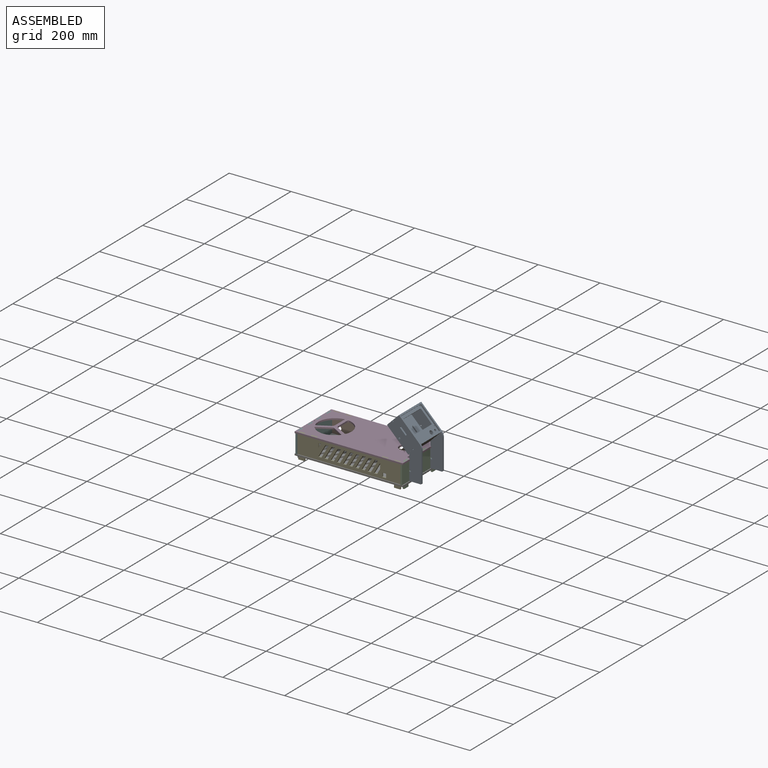
[diagram: assembled view]
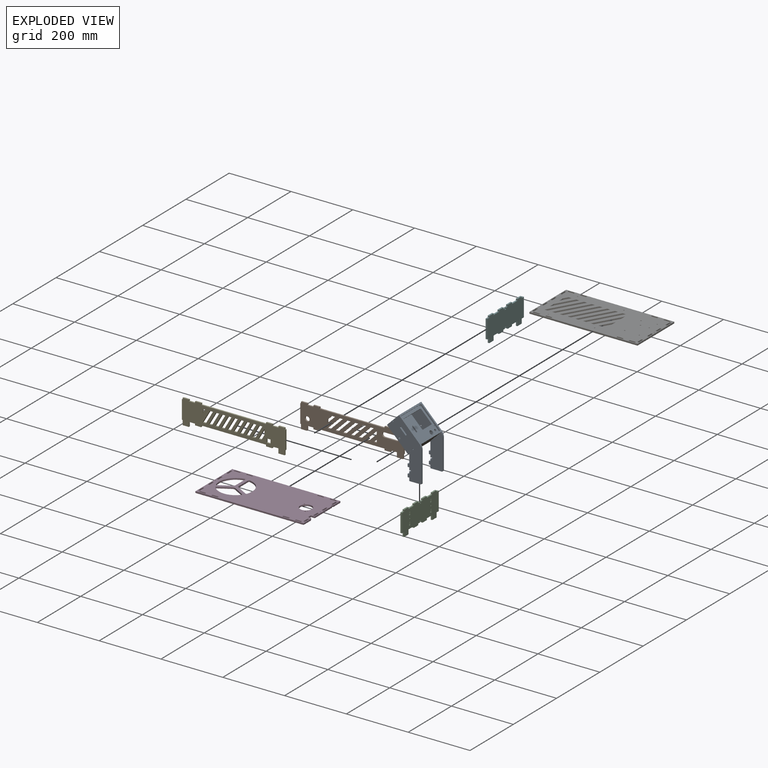
[diagram: exploded view]
GUIDED TOUR — MATED ASSEMBLY WITH SUBASSEMBLIES (Onshape document 587b4a1ab7e3a016f7670e06, AutoMate assembly 587b4a1ab7e3a016f7670e06_d3d78eabf9d92a54202f4ebb_e100b8238a51e1d866938ae5_default)

This assembly has 12 component occurrences arranged in 7 top-level units: 6 individual components plus 1 subassembly (S0). The tour has two levels: first the top level, where each subassembly is treated as one rigid unit; then each subassembly is toured internally in its own section (nesting deeper than one subassembly level is flattened into its subassembly's section).

Components are labeled P0..P11 across the whole record; subassembly units are labeled S0..S0. A mate is a constraint between two units; its type names the relative motion it leaves free:
  FASTENED — locks the two components together rigidly (no relative motion).
Axis/direction vectors are unit vectors and 'through' points are millimeter coordinates, both in the assembly's world frame.

TOP-LEVEL MATES (between units; each subassembly's internal mates are listed in its own section)
  1. FASTENED "Fastened 4": P9 <-> P11, direction (1.000, 0.000, 0.000) through (250.34, -20.91, -19.92) mm
  2. FASTENED "Fastened 5": P1 <-> P11, direction (-1.000, 0.000, 0.000) through (230.34, 139.09, -19.92) mm
  3. FASTENED "Fastened 2": P7 <-> P8, direction (0.000, -1.000, 0.000) through (295.34, 29.09, 45.08) mm
  4. FASTENED "Fastened 3": P10 <-> P8, direction (0.000, -1.000, 0.000) through (-44.66, -15.91, 45.08) mm
  5. FASTENED "Fastened 6": S0 <-> P7, direction (0.000, 0.000, 1.000) through (295.34, 10.09, 32.58) mm
  6. FASTENED "Fastened 1": P7 <-> P11, direction (0.000, -1.000, 0.000) through (295.34, 29.09, -19.92) mm

TOP-LEVEL ASSEMBLY ORDER
  1. S0 — the base component [order verified]
  2. P8 [order verified]
  3. P7 [order verified]
  4. P1 [order verified]
  5. P10 [order verified]
  6. P11 [order verified]
  7. P9 [order verified]
Order-tag legend:
  [order verified] — this step's position reverses a verified removal order: the component was checked to insert without passing through the ones already placed.

Of the 12 component occurrences, 12 carry the full construction recipe — the FeatureScript program that regenerates the part's solid from scratch; the rest are supplied as boundary geometry only. Each toured unit is shown spotlighted twice — assembled, then exploded with a leader line back to its socket (green = recipe-attached component, orange = geometry-only, blue = subassembly unit; the rest desaturated gray).
NOTE — this tour is split across 2 documents so each fits a 32k-token context. This is document 1: the component sections continue in the remaining 1 document, each repeating the header above.
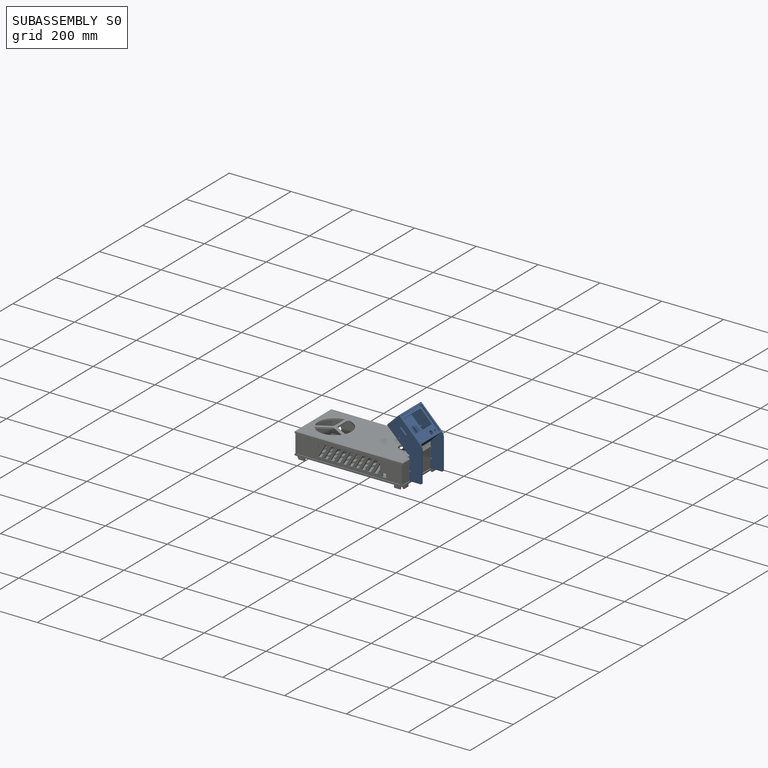
[diagram: subassembly S0 — assembled]
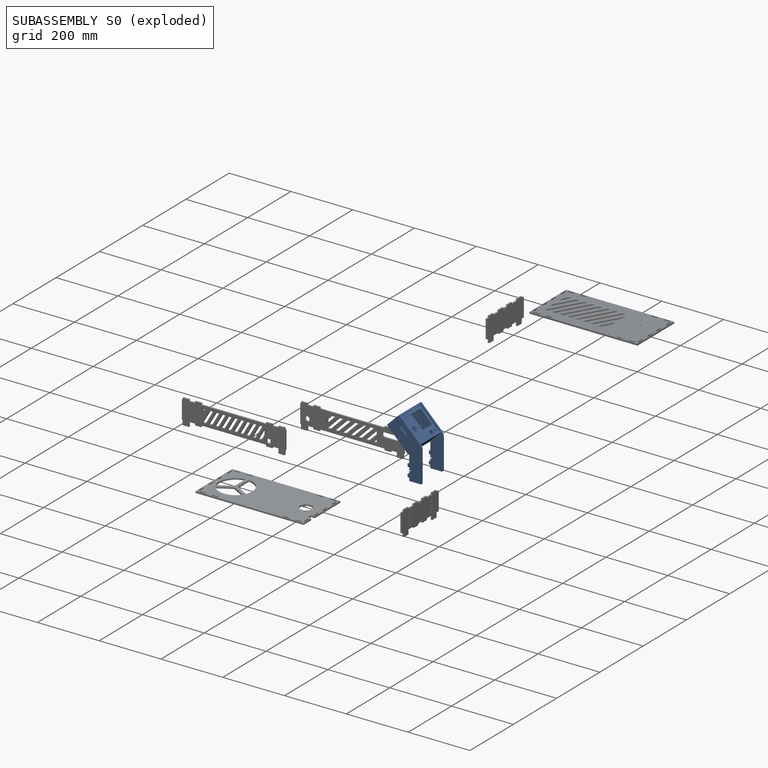
[diagram: subassembly S0 — exploded]
SUBASSEMBLY S0 — 6 components (P0, P2, P3, P4, P5, P6), of which 6 recipe-attached; toured below.
Held by: FASTENED mate "Fastened 6" to P7.
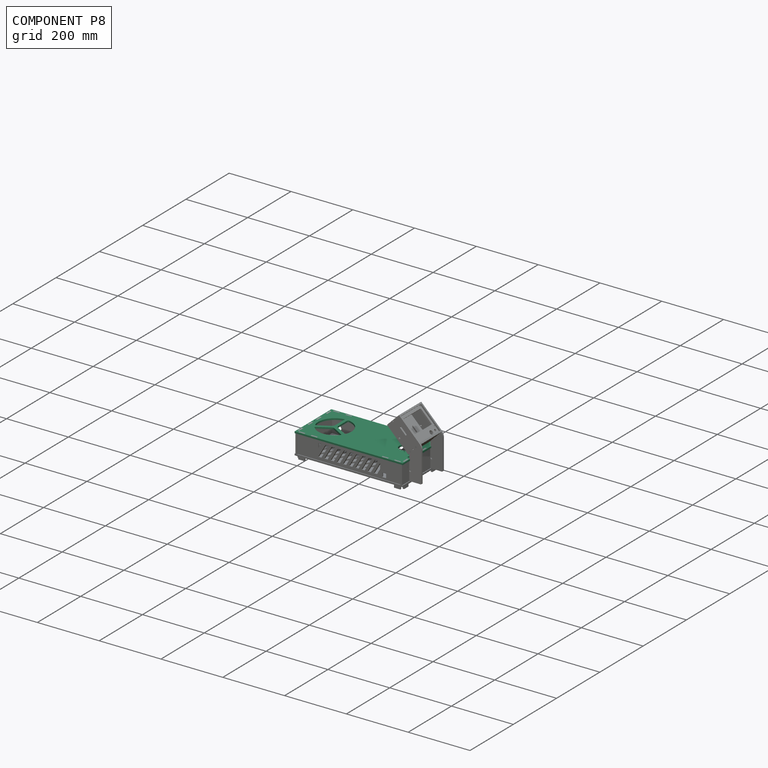
[diagram: component P8 — assembled]
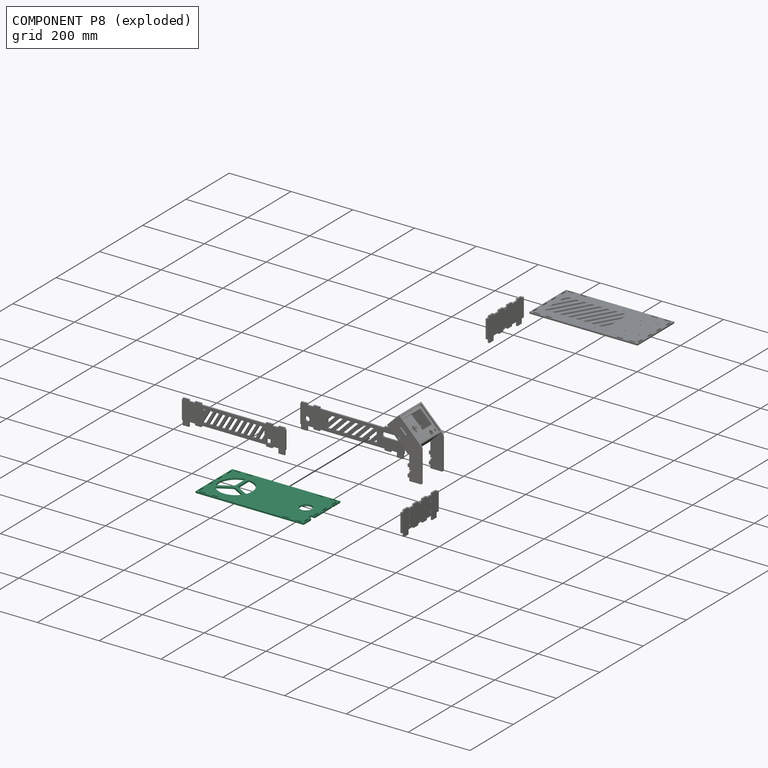
[diagram: component P8 — exploded]
COMPONENT P8 — recipe-attached (CADFS 00448750, mesh-verified: the recipe's output STEP matches this component's geometry to below the mesh-comparison resolution (tessellation chordal tolerance ~0.584 mm)).
Held by: FASTENED mate "Fastened 2" to P7; FASTENED mate "Fastened 3" to P10.
Construction recipe (FeatureScript — the CAD program that rebuilds this solid; sketch coordinates are in the units given by the * unit suffixes, e.g. mm):

FeatureScript 1511;
import(path : "onshape/std/geometry.fs", version : "1511.0");
import(path : "onshape/std/common.fs", version : "1511.0");
const mm = millimeter;
const VERTEX = EntityType.VERTEX;
const EDGE = EntityType.EDGE;
const FACE = EntityType.FACE;
const BODY = EntityType.BODY;
function v(x, y){return vector(x, y);}
function OD(order){return orderDisambiguation(order);}
function OSD(set){return originalSetDisambiguation(set);}
function TD(topology){return topologyDisambiguation(topology);}
function TDD(query){return trueDependencyDisambiguation(query);}
function sQuery(a, b, c) {return sketchEntityQuery(a, b, c);}

annotation { "Feature Type Name" : "Feature", "Feature Type Description" : "" }
export const myFeature = defineFeature(function(context is Context, id is Id, definition is map)
    precondition{}
    {
        {
            assignVariable(context, id + "F0", {"name" : "thickness", "anyValue" : 5 * mm});
        }
        {
            var Q0;
            Q0=qCreatedBy(makeId("Top.planeOp"),FACE);
            var sketch = newSketch(context, id + "F1", { "sketchPlane" : qUnion([Q0])});
            skLineSegment(sketch, "E0.bottom", {"start": v(0, 0) * mm, "end": v(350, 0) * mm});
            skLineSegment(sketch, "E0.top", {"start": v(0, 170) * mm, "end": v(350, 170) * mm});
            skLineSegment(sketch, "E0.left", {"start": v(0, 0) * mm, "end": v(0, 170) * mm});
            skLineSegment(sketch, "E0.right", {"start": v(350, 0) * mm, "end": v(350, 33.5) * mm});
            skLineSegment(sketch, "E1.0", {"start": v(10, 160) * mm, "end": v(340, 160) * mm, "construction": true});
            skLineSegment(sketch, "E1.1", {"start": v(10, 10) * mm, "end": v(10, 160) * mm, "construction": true});
            skLineSegment(sketch, "E1.2", {"start": v(10, 10) * mm, "end": v(340, 10) * mm, "construction": true});
            skLineSegment(sketch, "E1.3", {"start": v(340, 10) * mm, "end": v(340, 160) * mm, "construction": true});
            skLineSegment(sketch, "E2.bottom", {"start": v(325, 34.25) * mm, "end": v(325, 135.75) * mm, "construction": true});
            skLineSegment(sketch, "E2.top", {"start": v(271.5, 34.25) * mm, "end": v(271.5, 135.75) * mm, "construction": true});
            skLineSegment(sketch, "E2.left", {"start": v(325, 34.25) * mm, "end": v(271.5, 34.25) * mm, "construction": true});
            skLineSegment(sketch, "E2.right", {"start": v(325, 135.75) * mm, "end": v(271.5, 135.75) * mm, "construction": true});
            skPoint(sketch, "E3", {"position": v(298.25, 34.25) * mm});
            skPoint(sketch, "E4", {"position": v(325, 85) * mm});
            skPoint(sketch, "E5", {"position": v(340, 85) * mm});
            skLineSegment(sketch, "E6.bottom", {"start": v(17, 142.5) * mm, "end": v(232, 142.5) * mm, "construction": true});
            skLineSegment(sketch, "E6.top", {"start": v(17, 27.5) * mm, "end": v(232, 27.5) * mm, "construction": true});
            skLineSegment(sketch, "E6.left", {"start": v(17, 142.5) * mm, "end": v(17, 27.5) * mm, "construction": true});
            skLineSegment(sketch, "E6.right", {"start": v(232, 142.5) * mm, "end": v(232, 27.5) * mm, "construction": true});
            skPoint(sketch, "E7", {"position": v(232, 85) * mm});
            skPoint(sketch, "E8", {"position": v(199.5, 85) * mm});
            skLineSegment(sketch, "E9.bottom", {"start": v(10, 7.5) * mm, "end": v(30, 7.5) * mm});
            skLineSegment(sketch, "E9.top", {"start": v(10, 2.5) * mm, "end": v(30, 2.5) * mm});
            skLineSegment(sketch, "E9.left", {"start": v(10, 7.5) * mm, "end": v(10, 2.5) * mm});
            skLineSegment(sketch, "E9.right", {"start": v(30, 7.5) * mm, "end": v(30, 2.5) * mm});
            skPoint(sketch, "E9.middle", {"position": v(20, 5) * mm});
            skLineSegment(sketch, "E10", {"start": v(10, 10) * mm, "end": v(10, 0) * mm, "construction": true});
            skPoint(sketch, "E11", {"position": v(10, 5) * mm});
            skLineSegment(sketch, "E12.bottom", {"start": v(50, 7.5) * mm, "end": v(70, 7.5) * mm});
            skLineSegment(sketch, "E12.top", {"start": v(50, 2.5) * mm, "end": v(70, 2.5) * mm});
            skLineSegment(sketch, "E12.left", {"start": v(50, 7.5) * mm, "end": v(50, 2.5) * mm});
            skLineSegment(sketch, "E12.right", {"start": v(70, 7.5) * mm, "end": v(70, 2.5) * mm});
            skPoint(sketch, "E12.middle", {"position": v(60, 5) * mm});
            skLineSegment(sketch, "E13", {"start": v(175, 10) * mm, "end": v(175, 0) * mm, "construction": true});
            skLineSegment(sketch, "E14.MirrorCS", {"start": v(300, 2.5) * mm, "end": v(280, 2.5) * mm});
            skLineSegment(sketch, "E15.MirrorCS", {"start": v(320, 7.5) * mm, "end": v(320, 2.5) * mm});
            skPoint(sketch, "E16.MirrorP", {"position": v(330, 5) * mm});
            skLineSegment(sketch, "E17.MirrorCS", {"start": v(300, 7.5) * mm, "end": v(280, 7.5) * mm});
            skLineSegment(sketch, "E18.MirrorCS", {"start": v(340, 2.5) * mm, "end": v(320, 2.5) * mm});
            skLineSegment(sketch, "E19.MirrorCS", {"start": v(280, 7.5) * mm, "end": v(280, 2.5) * mm});
            skPoint(sketch, "E20.MirrorP", {"position": v(290, 5) * mm});
            skLineSegment(sketch, "E21.MirrorCS", {"start": v(300, 7.5) * mm, "end": v(300, 2.5) * mm});
            skLineSegment(sketch, "E22.MirrorCS", {"start": v(340, 7.5) * mm, "end": v(340, 2.5) * mm});
            skLineSegment(sketch, "E23.MirrorCS", {"start": v(340, 7.5) * mm, "end": v(320, 7.5) * mm});
            skLineSegment(sketch, "E24", {"start": v(0, 85) * mm, "end": v(350, 85) * mm, "construction": true});
            skLineSegment(sketch, "E25.MirrorCS", {"start": v(30, 162.5) * mm, "end": v(30, 167.5) * mm});
            skPoint(sketch, "E26.MirrorP", {"position": v(20, 165) * mm});
            skLineSegment(sketch, "E27.MirrorCS", {"start": v(10, 167.5) * mm, "end": v(30, 167.5) * mm});
            skLineSegment(sketch, "E28.MirrorCS", {"start": v(10, 162.5) * mm, "end": v(10, 167.5) * mm});
            skPoint(sketch, "E29.MirrorP", {"position": v(10, 165) * mm});
            skLineSegment(sketch, "E30.MirrorCS", {"start": v(10, 162.5) * mm, "end": v(30, 162.5) * mm});
            skLineSegment(sketch, "E31.MirrorCS", {"start": v(50, 167.5) * mm, "end": v(70, 167.5) * mm});
            skLineSegment(sketch, "E32.MirrorCS", {"start": v(50, 162.5) * mm, "end": v(50, 167.5) * mm});
            skLineSegment(sketch, "E33.MirrorCS", {"start": v(50, 162.5) * mm, "end": v(70, 162.5) * mm});
            skPoint(sketch, "E34.MirrorP", {"position": v(60, 165) * mm});
            skLineSegment(sketch, "E35.MirrorCS", {"start": v(70, 162.5) * mm, "end": v(70, 167.5) * mm});
            skLineSegment(sketch, "E36.MirrorCS", {"start": v(300, 167.5) * mm, "end": v(280, 167.5) * mm});
            skLineSegment(sketch, "E37.MirrorCS", {"start": v(280, 162.5) * mm, "end": v(280, 167.5) * mm});
            skLineSegment(sketch, "E38.MirrorCS", {"start": v(340, 167.5) * mm, "end": v(320, 167.5) * mm});
            skPoint(sketch, "E39.MirrorP", {"position": v(290, 165) * mm});
            skPoint(sketch, "E40.MirrorP", {"position": v(330, 165) * mm});
            skLineSegment(sketch, "E41.MirrorCS", {"start": v(340, 162.5) * mm, "end": v(320, 162.5) * mm});
            skLineSegment(sketch, "E42.MirrorCS", {"start": v(320, 162.5) * mm, "end": v(320, 167.5) * mm});
            skLineSegment(sketch, "E43.MirrorCS", {"start": v(300, 162.5) * mm, "end": v(300, 167.5) * mm});
            skLineSegment(sketch, "E44.MirrorCS", {"start": v(300, 162.5) * mm, "end": v(280, 162.5) * mm});
            skLineSegment(sketch, "E45.MirrorCS", {"start": v(340, 162.5) * mm, "end": v(340, 167.5) * mm});
            skLineSegment(sketch, "E46.bottom", {"start": v(7.5, 30) * mm, "end": v(2.5, 30) * mm});
            skLineSegment(sketch, "E46.top", {"start": v(7.5, 10) * mm, "end": v(2.5, 10) * mm});
            skLineSegment(sketch, "E46.left", {"start": v(7.5, 30) * mm, "end": v(7.5, 10) * mm});
            skLineSegment(sketch, "E46.right", {"start": v(2.5, 30) * mm, "end": v(2.5, 10) * mm});
            skPoint(sketch, "E46.middle", {"position": v(5, 20) * mm});
            skLineSegment(sketch, "E47", {"start": v(10, 10) * mm, "end": v(0, 10) * mm, "construction": true});
            skPoint(sketch, "E48", {"position": v(5, 10) * mm});
            skLineSegment(sketch, "E49.bottom", {"start": v(7.5, 75) * mm, "end": v(2.5, 75) * mm});
            skLineSegment(sketch, "E49.top", {"start": v(7.5, 55) * mm, "end": v(2.5, 55) * mm});
            skLineSegment(sketch, "E49.left", {"start": v(7.5, 75) * mm, "end": v(7.5, 55) * mm});
            skLineSegment(sketch, "E49.right", {"start": v(2.5, 75) * mm, "end": v(2.5, 55) * mm});
            skPoint(sketch, "E49.middle", {"position": v(5, 65) * mm});
            skCircle(sketch, "E50", {"center": v(5, 85) * mm, "radius": 1.6 * mm});
            skPoint(sketch, "E50.centerSnap0", {"position": v(5, 75) * mm});
            skLineSegment(sketch, "E51.MirrorCS", {"start": v(7.5, 95) * mm, "end": v(2.5, 95) * mm});
            skPoint(sketch, "E52.MirrorP", {"position": v(5, 105) * mm});
            skLineSegment(sketch, "E53.MirrorCS", {"start": v(7.5, 95) * mm, "end": v(7.5, 115) * mm});
            skLineSegment(sketch, "E54.MirrorCS", {"start": v(7.5, 115) * mm, "end": v(2.5, 115) * mm});
            skLineSegment(sketch, "E55.MirrorCS", {"start": v(2.5, 95) * mm, "end": v(2.5, 115) * mm});
            skLineSegment(sketch, "E56.MirrorCS", {"start": v(7.5, 160) * mm, "end": v(2.5, 160) * mm});
            skLineSegment(sketch, "E57.MirrorCS", {"start": v(2.5, 140) * mm, "end": v(2.5, 160) * mm});
            skLineSegment(sketch, "E58.MirrorCS", {"start": v(7.5, 140) * mm, "end": v(7.5, 160) * mm});
            skLineSegment(sketch, "E59.MirrorCS", {"start": v(7.5, 140) * mm, "end": v(2.5, 140) * mm});
            skPoint(sketch, "E60.MirrorP", {"position": v(5, 150) * mm});
            skLineSegment(sketch, "E61.MirrorCS", {"start": v(342.5, 75) * mm, "end": v(347.5, 75) * mm});
            skCircle(sketch, "E62.MirrorC", {"center": v(345, 85) * mm, "radius": 1.6 * mm});
            skLineSegment(sketch, "E63.MirrorCS", {"start": v(342.5, 10) * mm, "end": v(347.5, 10) * mm});
            skLineSegment(sketch, "E64.MirrorCS", {"start": v(347.5, 30) * mm, "end": v(347.5, 10) * mm});
            skLineSegment(sketch, "E65.MirrorCS", {"start": v(342.5, 95) * mm, "end": v(347.5, 95) * mm});
            skLineSegment(sketch, "E66.MirrorCS", {"start": v(342.5, 95) * mm, "end": v(342.5, 115) * mm});
            skPoint(sketch, "E67.MirrorP", {"position": v(345, 65) * mm});
            skPoint(sketch, "E68.MirrorP", {"position": v(345, 75) * mm});
            skLineSegment(sketch, "E69.MirrorCS", {"start": v(342.5, 115) * mm, "end": v(347.5, 115) * mm});
            skLineSegment(sketch, "E70.MirrorCS", {"start": v(342.5, 160) * mm, "end": v(347.5, 160) * mm});
            skLineSegment(sketch, "E71.MirrorCS", {"start": v(342.5, 30) * mm, "end": v(342.5, 10) * mm});
            skPoint(sketch, "E72.MirrorP", {"position": v(345, 105) * mm});
            skLineSegment(sketch, "E73.MirrorCS", {"start": v(342.5, 75) * mm, "end": v(342.5, 55) * mm});
            skLineSegment(sketch, "E74.MirrorCS", {"start": v(342.5, 30) * mm, "end": v(347.5, 30) * mm});
            skLineSegment(sketch, "E75.MirrorCS", {"start": v(342.5, 140) * mm, "end": v(342.5, 160) * mm});
            skPoint(sketch, "E76.MirrorP", {"position": v(345, 20) * mm});
            skLineSegment(sketch, "E77.MirrorCS", {"start": v(347.5, 75) * mm, "end": v(347.5, 55) * mm});
            skLineSegment(sketch, "E78.MirrorCS", {"start": v(342.5, 55) * mm, "end": v(347.5, 55) * mm});
            skLineSegment(sketch, "E79.MirrorCS", {"start": v(347.5, 140) * mm, "end": v(347.5, 160) * mm});
            skPoint(sketch, "E80.MirrorP", {"position": v(345, 150) * mm});
            skLineSegment(sketch, "E81.MirrorCS", {"start": v(347.5, 95) * mm, "end": v(347.5, 115) * mm});
            skPoint(sketch, "E82.MirrorP", {"position": v(345, 10) * mm});
            skLineSegment(sketch, "E83.MirrorCS", {"start": v(342.5, 140) * mm, "end": v(347.5, 140) * mm});
            skLineSegment(sketch, "E84", {"start": v(124.5, 142.5) * mm, "end": v(124.5, 27.5) * mm, "construction": true});
            skLineSegment(sketch, "E85", {"start": v(17, 85) * mm, "end": v(124.5, 85) * mm, "construction": true});
            skLineSegment(sketch, "E86", {"start": v(70.75, 85) * mm, "end": v(70.75, 142.5) * mm, "construction": true});
            skArc(sketch, "E87", {"start": v(29.02, 51.12) * mm, "mid": v(70.75, 31.25) * mm, "end": v(112.48, 51.12) * mm});
            skLineSegment(sketch, "E88", {"start": v(65.75, 93.66) * mm, "end": v(65.75, 135.12) * mm});
            skLineSegment(sketch, "E89", {"start": v(75.75, 93.66) * mm, "end": v(75.75, 135.12) * mm});
            skLineSegment(sketch, "E90.1.0", {"start": v(65.75, 76.34) * mm, "end": v(29.85, 55.61) * mm});
            skLineSegment(sketch, "E90.1.1", {"start": v(60.75, 85) * mm, "end": v(24.85, 64.27) * mm});
            skLineSegment(sketch, "E90.2.0", {"start": v(80.75, 85) * mm, "end": v(116.65, 64.27) * mm});
            skLineSegment(sketch, "E90.2.1", {"start": v(75.75, 76.34) * mm, "end": v(111.65, 55.61) * mm});
            skArc(sketch, "E91.trimOffspring", {"start": v(62.28, 138.08) * mm, "mid": v(24.2, 111.87) * mm, "end": v(20.55, 65.8) * mm});
            skArc(sketch, "E92.trimOffspring", {"start": v(120.95, 65.8) * mm, "mid": v(117.3, 111.87) * mm, "end": v(79.22, 138.08) * mm});
            skCircle(sketch, "E93", {"center": v(70.75, 85) * mm, "radius": 5.77 * mm, "construction": true});
            skPoint(sketch, "E94.visualSharp", {"position": v(65.75, 87.89) * mm});
            skArc(sketch, "E94.filletArc", {"start": v(60.75, 85) * mm, "mid": v(64.41, 88.66) * mm, "end": v(65.75, 93.66) * mm});
            skPoint(sketch, "E95.visualSharp", {"position": v(75.75, 87.89) * mm});
            skArc(sketch, "E95.filletArc", {"start": v(75.75, 93.66) * mm, "mid": v(77.09, 88.66) * mm, "end": v(80.75, 85) * mm});
            skPoint(sketch, "E96.visualSharp", {"position": v(70.75, 79.23) * mm});
            skArc(sketch, "E96.filletArc", {"start": v(75.75, 76.34) * mm, "mid": v(70.75, 77.68) * mm, "end": v(65.75, 76.34) * mm});
            skPoint(sketch, "E97.visualSharp", {"position": v(26.9, 53.91) * mm});
            skArc(sketch, "E97.filletArc", {"start": v(29.85, 55.61) * mm, "mid": v(28.4, 53.56) * mm, "end": v(29.02, 51.12) * mm});
            skPoint(sketch, "E98.visualSharp", {"position": v(114.6, 53.91) * mm});
            skArc(sketch, "E98.filletArc", {"start": v(112.48, 51.12) * mm, "mid": v(113.1, 53.56) * mm, "end": v(111.65, 55.61) * mm});
            skPoint(sketch, "E99.visualSharp", {"position": v(119.6, 62.57) * mm});
            skArc(sketch, "E99.filletArc", {"start": v(116.65, 64.27) * mm, "mid": v(119.15, 64.04) * mm, "end": v(120.95, 65.8) * mm});
            skPoint(sketch, "E100.visualSharp", {"position": v(75.75, 138.52) * mm});
            skArc(sketch, "E100.filletArc", {"start": v(79.22, 138.08) * mm, "mid": v(76.8, 137.4) * mm, "end": v(75.75, 135.12) * mm});
            skPoint(sketch, "E101.visualSharp", {"position": v(65.75, 138.52) * mm});
            skArc(sketch, "E101.filletArc", {"start": v(65.75, 135.12) * mm, "mid": v(64.7, 137.4) * mm, "end": v(62.28, 138.08) * mm});
            skPoint(sketch, "E102.visualSharp", {"position": v(21.9, 62.57) * mm});
            skArc(sketch, "E102.filletArc", {"start": v(20.55, 65.8) * mm, "mid": v(22.35, 64.04) * mm, "end": v(24.85, 64.27) * mm});
            skCircle(sketch, "E103", {"center": v(298.25, 85) * mm, "radius": 19 * mm});
            skLineSegment(sketch, "E104.bottom", {"start": v(282.25, 101) * mm, "end": v(314.25, 101) * mm, "construction": true});
            skLineSegment(sketch, "E104.top", {"start": v(282.25, 69) * mm, "end": v(314.25, 69) * mm, "construction": true});
            skLineSegment(sketch, "E104.left", {"start": v(282.25, 101) * mm, "end": v(282.25, 69) * mm, "construction": true});
            skLineSegment(sketch, "E104.right", {"start": v(314.25, 101) * mm, "end": v(314.25, 69) * mm, "construction": true});
            skPoint(sketch, "E105", {"position": v(298.25, 101) * mm});
            skPoint(sketch, "E106", {"position": v(282.25, 85) * mm});
            skCircle(sketch, "E107", {"center": v(282.25, 101) * mm, "radius": 1.6 * mm});
            skCircle(sketch, "E108", {"center": v(314.25, 69) * mm, "radius": 1.6 * mm});
            skLineSegment(sketch, "E109.bottom", {"start": v(278.25, 105) * mm, "end": v(318.25, 105) * mm, "construction": true});
            skLineSegment(sketch, "E109.top", {"start": v(278.25, 65) * mm, "end": v(318.25, 65) * mm, "construction": true});
            skLineSegment(sketch, "E109.left", {"start": v(278.25, 105) * mm, "end": v(278.25, 65) * mm, "construction": true});
            skLineSegment(sketch, "E109.right", {"start": v(318.25, 105) * mm, "end": v(318.25, 65) * mm, "construction": true});
            skPoint(sketch, "E110", {"position": v(298.25, 105) * mm});
            skPoint(sketch, "E111", {"position": v(318.25, 85) * mm});
            skLineSegment(sketch, "E112.bottom", {"start": v(308.28, 65) * mm, "end": v(313.28, 65) * mm});
            skLineSegment(sketch, "E112.top", {"start": v(308.28, 62) * mm, "end": v(313.28, 62) * mm});
            skLineSegment(sketch, "E112.left", {"start": v(308.28, 65) * mm, "end": v(308.28, 62) * mm});
            skLineSegment(sketch, "E112.right", {"start": v(313.28, 65) * mm, "end": v(313.28, 62) * mm});
            skLineSegment(sketch, "E113", {"start": v(298.25, 135.75) * mm, "end": v(298.25, 34.25) * mm, "construction": true});
            skLineSegment(sketch, "E114", {"start": v(350, 33.5) * mm, "end": v(347.5, 33.5) * mm});
            skLineSegment(sketch, "E115", {"start": v(347.5, 33.5) * mm, "end": v(347.5, 38.5) * mm});
            skLineSegment(sketch, "E116.MirrorCS", {"start": v(347.5, 131.5) * mm, "end": v(350, 131.5) * mm});
            skLineSegment(sketch, "E117.MirrorCS", {"start": v(350, 136.5) * mm, "end": v(347.5, 136.5) * mm});
            skLineSegment(sketch, "E118.MirrorCS", {"start": v(347.5, 136.5) * mm, "end": v(347.5, 131.5) * mm});
            skLineSegment(sketch, "E119.trimOffspring", {"start": v(350, 136.5) * mm, "end": v(350, 170) * mm});
            skLineSegment(sketch, "E120.trimOffspring", {"start": v(350, 51.5) * mm, "end": v(350, 131.5) * mm});
            skLineSegment(sketch, "E121", {"start": v(347.5, 38.5) * mm, "end": v(337.5, 38.5) * mm});
            skLineSegment(sketch, "E122", {"start": v(337.5, 38.5) * mm, "end": v(337.5, 51.5) * mm});
            skLineSegment(sketch, "E123", {"start": v(337.5, 51.5) * mm, "end": v(350, 51.5) * mm});
            skSolve(sketch);
        }
        {
            var Q0;
            Q0=qSketchRegion(id+"F1",true);
            extrude(context, id + "F2", {"entities" : qUnion([Q0]), "depth" : getVariable(context, 'thickness')});
        }
    });
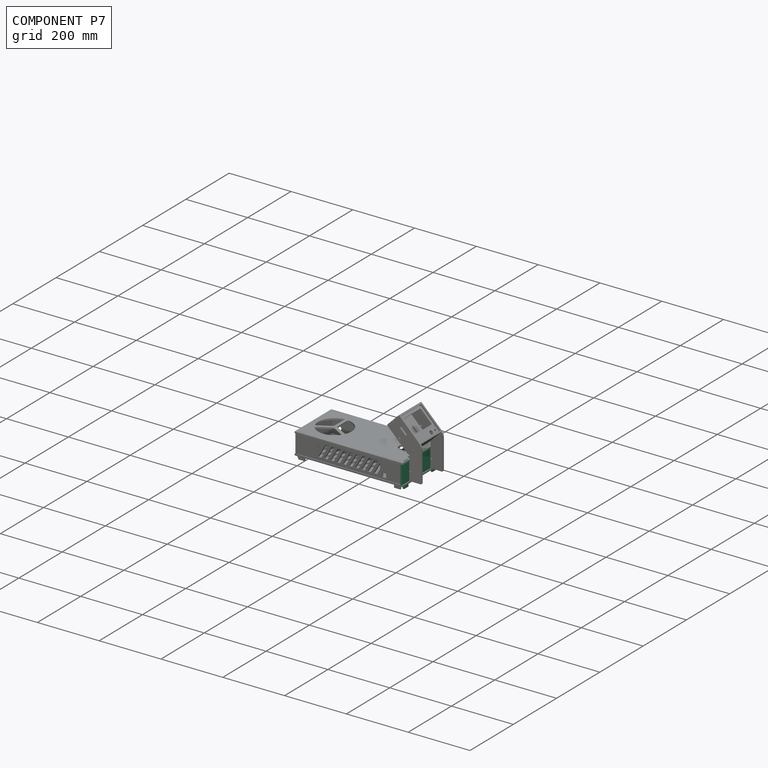
[diagram: component P7 — assembled]
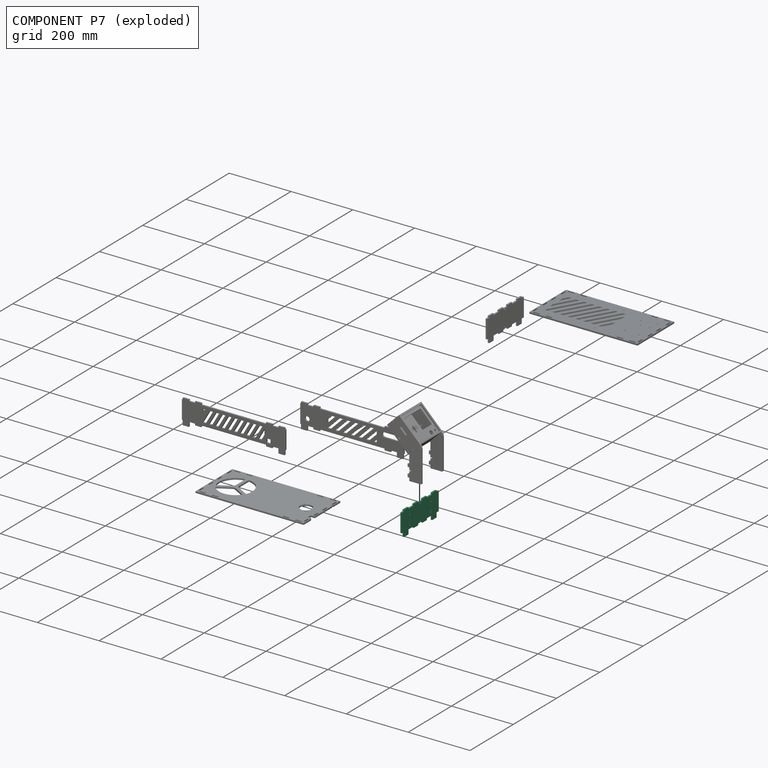
[diagram: component P7 — exploded]
COMPONENT P7 — recipe-attached (CADFS 00448745, mesh-verified: the recipe's output STEP matches this component's geometry to below the mesh-comparison resolution (tessellation chordal tolerance ~0.282 mm)).
Held by: FASTENED mate "Fastened 2" to P8; FASTENED mate "Fastened 6" to P0; FASTENED mate "Fastened 1" to P11.
Construction recipe (FeatureScript — the CAD program that rebuilds this solid; sketch coordinates are in the units given by the * unit suffixes, e.g. mm):

FeatureScript 1511;
import(path : "onshape/std/geometry.fs", version : "1511.0");
import(path : "onshape/std/common.fs", version : "1511.0");
const mm = millimeter;
const VERTEX = EntityType.VERTEX;
const EDGE = EntityType.EDGE;
const FACE = EntityType.FACE;
const BODY = EntityType.BODY;
function v(x, y){return vector(x, y);}
function OD(order){return orderDisambiguation(order);}
function OSD(set){return originalSetDisambiguation(set);}
function TD(topology){return topologyDisambiguation(topology);}
function TDD(query){return trueDependencyDisambiguation(query);}
function sQuery(a, b, c) {return sketchEntityQuery(a, b, c);}

annotation { "Feature Type Name" : "Feature", "Feature Type Description" : "" }
export const myFeature = defineFeature(function(context is Context, id is Id, definition is map)
    precondition{}
    {
        {
            assignVariable(context, id + "F0", {"name" : "thickness", "anyValue" : 5 * mm});
        }
        {
            var Q0;
            Q0=qCreatedBy(makeId("Right.planeOp"),FACE);
            var sketch = newSketch(context, id + "F1", { "sketchPlane" : qUnion([Q0])});
            skLineSegment(sketch, "E0.bottom", {"start": v(0, 0) * mm, "end": v(83.4, 0) * mm});
            skLineSegment(sketch, "E0.top", {"start": v(0, 60) * mm, "end": v(83.4, 60) * mm});
            skLineSegment(sketch, "E0.left", {"start": v(0, 0) * mm, "end": v(0, 60) * mm});
            skLineSegment(sketch, "E0.right", {"start": v(170, 0) * mm, "end": v(170, 60) * mm});
            skLineSegment(sketch, "E1", {"start": v(10, 0) * mm, "end": v(10, -14.62) * mm});
            skLineSegment(sketch, "E2", {"start": v(10, -14.62) * mm, "end": v(30, -14.62) * mm});
            skLineSegment(sketch, "E3", {"start": v(30, -14.62) * mm, "end": v(30, 0) * mm});
            skLineSegment(sketch, "E4", {"start": v(55, 0) * mm, "end": v(55, -5) * mm});
            skLineSegment(sketch, "E5", {"start": v(55, -5) * mm, "end": v(75, -5) * mm});
            skLineSegment(sketch, "E6", {"start": v(75, -5) * mm, "end": v(75, 0) * mm});
            skLineSegment(sketch, "E7", {"start": v(85, 60) * mm, "end": v(85, 0) * mm, "construction": true});
            skLineSegment(sketch, "E8.MirrorCS", {"start": v(95, -5) * mm, "end": v(95, 0) * mm});
            skLineSegment(sketch, "E9.MirrorCS", {"start": v(115, -5) * mm, "end": v(95, -5) * mm});
            skLineSegment(sketch, "E10.MirrorCS", {"start": v(115, 0) * mm, "end": v(115, -5) * mm});
            skLineSegment(sketch, "E11.MirrorCS", {"start": v(140, -14.62) * mm, "end": v(140, 0) * mm});
            skLineSegment(sketch, "E12.MirrorCS", {"start": v(160, -14.62) * mm, "end": v(140, -14.62) * mm});
            skLineSegment(sketch, "E13.MirrorCS", {"start": v(160, 0) * mm, "end": v(160, -14.62) * mm});
            skLineSegment(sketch, "E14", {"start": v(83.4, 0) * mm, "end": v(83.4, 2.5) * mm});
            skLineSegment(sketch, "E15", {"start": v(83.4, 2.5) * mm, "end": v(82.25, 2.5) * mm});
            skLineSegment(sketch, "E16", {"start": v(82.25, 2.5) * mm, "end": v(82.25, 5) * mm});
            skLineSegment(sketch, "E17", {"start": v(82.25, 5) * mm, "end": v(85, 5) * mm});
            skLineSegment(sketch, "E18.MirrorCS", {"start": v(86.6, 2.5) * mm, "end": v(87.75, 2.5) * mm});
            skLineSegment(sketch, "E19.MirrorCS", {"start": v(87.75, 5) * mm, "end": v(85, 5) * mm});
            skLineSegment(sketch, "E20.MirrorCS", {"start": v(87.75, 2.5) * mm, "end": v(87.75, 5) * mm});
            skLineSegment(sketch, "E21.MirrorCS", {"start": v(86.6, 0) * mm, "end": v(86.6, 2.5) * mm});
            skLineSegment(sketch, "E22", {"start": v(0, 30) * mm, "end": v(170, 30) * mm, "construction": true});
            skLineSegment(sketch, "E23.MirrorCS", {"start": v(83.4, 57.5) * mm, "end": v(82.25, 57.5) * mm});
            skLineSegment(sketch, "E24.MirrorCS", {"start": v(87.75, 57.5) * mm, "end": v(87.75, 55) * mm});
            skLineSegment(sketch, "E25.MirrorCS", {"start": v(86.6, 60) * mm, "end": v(86.6, 57.5) * mm});
            skLineSegment(sketch, "E26.MirrorCS", {"start": v(86.6, 57.5) * mm, "end": v(87.75, 57.5) * mm});
            skLineSegment(sketch, "E27.MirrorCS", {"start": v(82.25, 57.5) * mm, "end": v(82.25, 55) * mm});
            skLineSegment(sketch, "E28.MirrorCS", {"start": v(83.4, 60) * mm, "end": v(83.4, 57.5) * mm});
            skLineSegment(sketch, "E29.MirrorCS", {"start": v(82.25, 55) * mm, "end": v(85, 55) * mm});
            skLineSegment(sketch, "E30.MirrorCS", {"start": v(87.75, 55) * mm, "end": v(85, 55) * mm});
            skLineSegment(sketch, "E31.MirrorCS", {"start": v(95, 65) * mm, "end": v(95, 60) * mm});
            skLineSegment(sketch, "E32.MirrorCS", {"start": v(75, 65) * mm, "end": v(75, 60) * mm});
            skLineSegment(sketch, "E33.MirrorCS", {"start": v(55, 60) * mm, "end": v(55, 65) * mm});
            skLineSegment(sketch, "E34.MirrorCS", {"start": v(115, 60) * mm, "end": v(115, 65) * mm});
            skLineSegment(sketch, "E35.MirrorCS", {"start": v(115, 65) * mm, "end": v(95, 65) * mm});
            skLineSegment(sketch, "E36.MirrorCS", {"start": v(55, 65) * mm, "end": v(75, 65) * mm});
            skLineSegment(sketch, "E37", {"start": v(10, 60) * mm, "end": v(10, 65) * mm});
            skLineSegment(sketch, "E38", {"start": v(10, 65) * mm, "end": v(30, 65) * mm});
            skLineSegment(sketch, "E39", {"start": v(30, 65) * mm, "end": v(30, 60) * mm});
            skLineSegment(sketch, "E40.MirrorCS", {"start": v(140, 65) * mm, "end": v(140, 60) * mm});
            skLineSegment(sketch, "E41.MirrorCS", {"start": v(160, 60) * mm, "end": v(160, 65) * mm});
            skLineSegment(sketch, "E42.MirrorCS", {"start": v(160, 65) * mm, "end": v(140, 65) * mm});
            skLineSegment(sketch, "E43.trimOffspring", {"start": v(86.6, 0) * mm, "end": v(170, 0) * mm});
            skLineSegment(sketch, "E44.trimOffspring", {"start": v(86.6, 60) * mm, "end": v(170, 60) * mm});
            skLineSegment(sketch, "E45.bottom", {"start": v(33.5, 20) * mm, "end": v(38.5, 20) * mm});
            skLineSegment(sketch, "E45.top", {"start": v(33.5, 10) * mm, "end": v(38.5, 10) * mm});
            skLineSegment(sketch, "E45.left", {"start": v(33.5, 20) * mm, "end": v(33.5, 10) * mm});
            skLineSegment(sketch, "E45.right", {"start": v(38.5, 20) * mm, "end": v(38.5, 10) * mm});
            skCircle(sketch, "E46", {"center": v(36, 30) * mm, "radius": 1.6 * mm});
            skPoint(sketch, "E46.centerSnap0", {"position": v(36, 20) * mm});
            skLineSegment(sketch, "E47.MirrorCS", {"start": v(33.5, 40) * mm, "end": v(38.5, 40) * mm});
            skLineSegment(sketch, "E48.MirrorCS", {"start": v(38.5, 40) * mm, "end": v(38.5, 50) * mm});
            skLineSegment(sketch, "E49.MirrorCS", {"start": v(33.5, 50) * mm, "end": v(38.5, 50) * mm});
            skLineSegment(sketch, "E50.MirrorCS", {"start": v(33.5, 40) * mm, "end": v(33.5, 50) * mm});
            skCircle(sketch, "E51.MirrorC", {"center": v(134, 30) * mm, "radius": 1.6 * mm});
            skLineSegment(sketch, "E52.MirrorCS", {"start": v(136.5, 20) * mm, "end": v(131.5, 20) * mm});
            skLineSegment(sketch, "E53.MirrorCS", {"start": v(131.5, 20) * mm, "end": v(131.5, 10) * mm});
            skLineSegment(sketch, "E54.MirrorCS", {"start": v(136.5, 40) * mm, "end": v(131.5, 40) * mm});
            skLineSegment(sketch, "E55.MirrorCS", {"start": v(131.5, 40) * mm, "end": v(131.5, 50) * mm});
            skLineSegment(sketch, "E56.MirrorCS", {"start": v(136.5, 10) * mm, "end": v(131.5, 10) * mm});
            skLineSegment(sketch, "E57.MirrorCS", {"start": v(136.5, 40) * mm, "end": v(136.5, 50) * mm});
            skPoint(sketch, "E58.MirrorP", {"position": v(134, 20) * mm});
            skLineSegment(sketch, "E59.MirrorCS", {"start": v(136.5, 20) * mm, "end": v(136.5, 10) * mm});
            skLineSegment(sketch, "E60.MirrorCS", {"start": v(136.5, 50) * mm, "end": v(131.5, 50) * mm});
            skSolve(sketch);
        }
        {
            var Q0;
            Q0=qSketchRegion(id+"F1",true);
            extrude(context, id + "F2", {"entities" : qUnion([Q0]), "depth" : getVariable(context, 'thickness')});
        }
    });
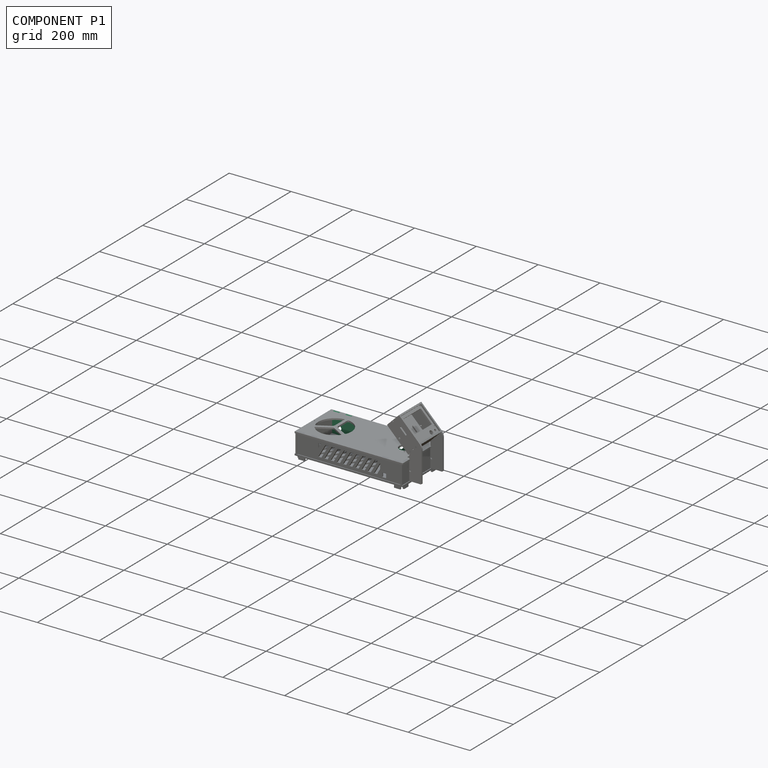
[diagram: component P1 — assembled]
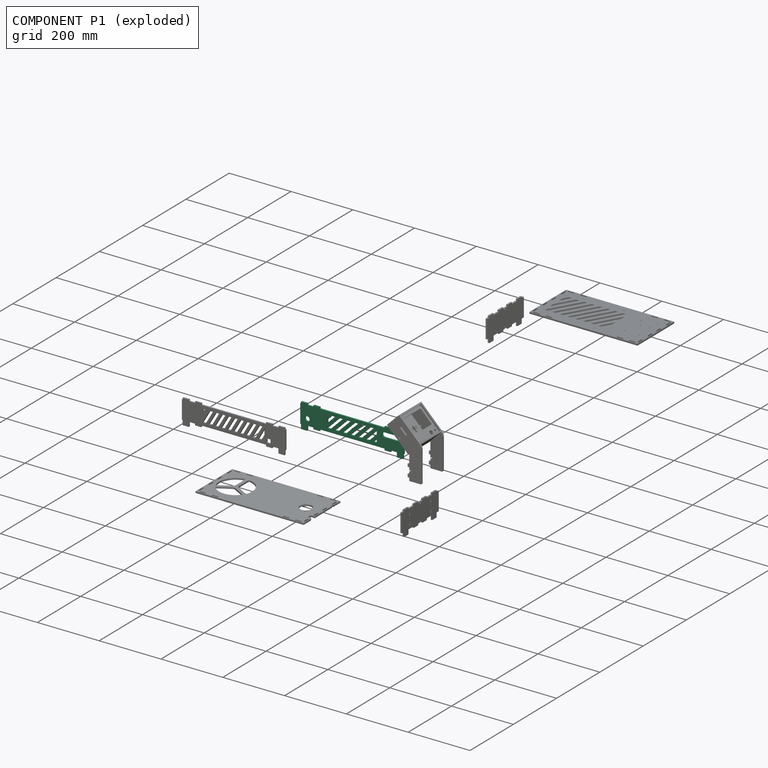
[diagram: component P1 — exploded]
COMPONENT P1 — recipe-attached (CADFS 00448747, mesh-verified: the recipe's output STEP matches this component's geometry to below the mesh-comparison resolution (tessellation chordal tolerance ~0.517 mm)).
Held by: FASTENED mate "Fastened 5" to P11.
Construction recipe (FeatureScript — the CAD program that rebuilds this solid; sketch coordinates are in the units given by the * unit suffixes, e.g. mm):

FeatureScript 1511;
import(path : "onshape/std/geometry.fs", version : "1511.0");
import(path : "onshape/std/common.fs", version : "1511.0");
const mm = millimeter;
const VERTEX = EntityType.VERTEX;
const EDGE = EntityType.EDGE;
const FACE = EntityType.FACE;
const BODY = EntityType.BODY;
function v(x, y){return vector(x, y);}
function OD(order){return orderDisambiguation(order);}
function OSD(set){return originalSetDisambiguation(set);}
function TD(topology){return topologyDisambiguation(topology);}
function TDD(query){return trueDependencyDisambiguation(query);}
function sQuery(a, b, c) {return sketchEntityQuery(a, b, c);}

annotation { "Feature Type Name" : "Feature", "Feature Type Description" : "" }
export const myFeature = defineFeature(function(context is Context, id is Id, definition is map)
    precondition{}
    {
        {
            assignVariable(context, id + "F0", {"name" : "thickness", "anyValue" : 5 * mm});
        }
        {
            var Q0;
            Q0=qCreatedBy(makeId("Right.planeOp"),FACE);
            var sketch = newSketch(context, id + "F1", { "sketchPlane" : qUnion([Q0])});
            skLineSegment(sketch, "E0.bottom", {"start": v(0, 0) * mm, "end": v(335, 0) * mm});
            skLineSegment(sketch, "E0.top", {"start": v(0, 60) * mm, "end": v(335, 60) * mm});
            skLineSegment(sketch, "E0.left", {"start": v(0, 0) * mm, "end": v(0, 60) * mm});
            skLineSegment(sketch, "E0.right", {"start": v(335, 0) * mm, "end": v(335, 60) * mm});
            skLineSegment(sketch, "E1", {"start": v(332.5, 0) * mm, "end": v(332.5, -15) * mm});
            skLineSegment(sketch, "E2", {"start": v(332.5, -15) * mm, "end": v(312.5, -15) * mm});
            skLineSegment(sketch, "E3", {"start": v(312.5, -15) * mm, "end": v(312.5, 0) * mm});
            skLineSegment(sketch, "E4", {"start": v(292.5, 0) * mm, "end": v(292.5, -5) * mm});
            skLineSegment(sketch, "E5", {"start": v(292.5, -5) * mm, "end": v(272.5, -5) * mm});
            skLineSegment(sketch, "E6", {"start": v(272.5, -5) * mm, "end": v(272.5, 0) * mm});
            skLineSegment(sketch, "E7", {"start": v(167.5, 60) * mm, "end": v(167.5, 0) * mm, "construction": true});
            skLineSegment(sketch, "E8", {"start": v(0, 30) * mm, "end": v(335, 30) * mm, "construction": true});
            skLineSegment(sketch, "E9.MirrorCS", {"start": v(62.5, -5) * mm, "end": v(62.5, 0) * mm});
            skLineSegment(sketch, "E10.MirrorCS", {"start": v(42.5, 0) * mm, "end": v(42.5, -5) * mm});
            skLineSegment(sketch, "E11.MirrorCS", {"start": v(42.5, -5) * mm, "end": v(62.5, -5) * mm});
            skLineSegment(sketch, "E12.MirrorCS", {"start": v(2.5, 0) * mm, "end": v(2.5, -15) * mm});
            skLineSegment(sketch, "E13.MirrorCS", {"start": v(2.5, -15) * mm, "end": v(22.5, -15) * mm});
            skLineSegment(sketch, "E14.MirrorCS", {"start": v(22.5, -15) * mm, "end": v(22.5, 0) * mm});
            skLineSegment(sketch, "E15.MirrorCS", {"start": v(62.5, 65) * mm, "end": v(62.5, 60) * mm});
            skLineSegment(sketch, "E16.MirrorCS", {"start": v(42.5, 60) * mm, "end": v(42.5, 65) * mm});
            skLineSegment(sketch, "E17.MirrorCS", {"start": v(42.5, 65) * mm, "end": v(62.5, 65) * mm});
            skLineSegment(sketch, "E18.MirrorCS", {"start": v(272.5, 65) * mm, "end": v(272.5, 60) * mm});
            skLineSegment(sketch, "E19.MirrorCS", {"start": v(292.5, 60) * mm, "end": v(292.5, 65) * mm});
            skLineSegment(sketch, "E20.MirrorCS", {"start": v(292.5, 65) * mm, "end": v(272.5, 65) * mm});
            skLineSegment(sketch, "E21", {"start": v(2.5, 60) * mm, "end": v(2.5, 65) * mm});
            skLineSegment(sketch, "E22", {"start": v(2.5, 65) * mm, "end": v(22.5, 65) * mm});
            skLineSegment(sketch, "E23", {"start": v(22.5, 65) * mm, "end": v(22.5, 60) * mm});
            skLineSegment(sketch, "E24.MirrorCS", {"start": v(332.5, 65) * mm, "end": v(312.5, 65) * mm});
            skLineSegment(sketch, "E25.MirrorCS", {"start": v(312.5, 65) * mm, "end": v(312.5, 60) * mm});
            skLineSegment(sketch, "E26.MirrorCS", {"start": v(332.5, 60) * mm, "end": v(332.5, 65) * mm});
            skLineSegment(sketch, "E27", {"start": v(272.5, 40) * mm, "end": v(312.5, 40) * mm, "construction": true});
            skArc(sketch, "E28.0.startCap", {"start": v(272.5, 32.5) * mm, "mid": v(265, 40) * mm, "end": v(272.5, 47.5) * mm});
            skArc(sketch, "E28.0.endCap", {"start": v(312.5, 47.5) * mm, "mid": v(320, 40) * mm, "end": v(312.5, 32.5) * mm});
            skLineSegment(sketch, "E28.0.left", {"start": v(272.5, 47.5) * mm, "end": v(312.5, 47.5) * mm});
            skLineSegment(sketch, "E28.0.right", {"start": v(272.5, 32.5) * mm, "end": v(312.5, 32.5) * mm});
            skCircle(sketch, "E29", {"center": v(22.5, 20) * mm, "radius": 7.5 * mm});
            skLineSegment(sketch, "E30.bottom", {"start": v(87.5, 50) * mm, "end": v(247.5, 50) * mm, "construction": true});
            skLineSegment(sketch, "E30.top", {"start": v(87.5, 10) * mm, "end": v(247.5, 10) * mm, "construction": true});
            skLineSegment(sketch, "E30.left", {"start": v(87.5, 50) * mm, "end": v(87.5, 10) * mm, "construction": true});
            skLineSegment(sketch, "E30.right", {"start": v(247.5, 50) * mm, "end": v(247.5, 10) * mm, "construction": true});
            skPoint(sketch, "E31", {"position": v(167.5, 50) * mm});
            skPoint(sketch, "E32", {"position": v(87.5, 30) * mm});
            skLineSegment(sketch, "E33", {"start": v(87.5, 10) * mm, "end": v(127.5, 50) * mm});
            skLineSegment(sketch, "E34", {"start": v(127.5, 50) * mm, "end": v(137.5, 50) * mm});
            skLineSegment(sketch, "E35", {"start": v(137.5, 50) * mm, "end": v(97.5, 10) * mm});
            skLineSegment(sketch, "E36", {"start": v(97.5, 10) * mm, "end": v(87.5, 10) * mm});
            skLineSegment(sketch, "E37.1.0.0", {"start": v(112.5, 10) * mm, "end": v(152.5, 50) * mm});
            skLineSegment(sketch, "E37.1.0.1", {"start": v(162.5, 50) * mm, "end": v(122.5, 10) * mm});
            skLineSegment(sketch, "E37.1.0.2", {"start": v(152.5, 50) * mm, "end": v(162.5, 50) * mm});
            skLineSegment(sketch, "E37.1.0.3", {"start": v(122.5, 10) * mm, "end": v(112.5, 10) * mm});
            skLineSegment(sketch, "E37.2.0.0", {"start": v(137.5, 10) * mm, "end": v(177.5, 50) * mm});
            skLineSegment(sketch, "E37.2.0.1", {"start": v(187.5, 50) * mm, "end": v(147.5, 10) * mm});
            skLineSegment(sketch, "E37.2.0.2", {"start": v(177.5, 50) * mm, "end": v(187.5, 50) * mm});
            skLineSegment(sketch, "E37.2.0.3", {"start": v(147.5, 10) * mm, "end": v(137.5, 10) * mm});
            skLineSegment(sketch, "E37.3.0.0", {"start": v(162.5, 10) * mm, "end": v(202.5, 50) * mm});
            skLineSegment(sketch, "E37.3.0.1", {"start": v(212.5, 50) * mm, "end": v(172.5, 10) * mm});
            skLineSegment(sketch, "E37.3.0.2", {"start": v(202.5, 50) * mm, "end": v(212.5, 50) * mm});
            skLineSegment(sketch, "E37.3.0.3", {"start": v(172.5, 10) * mm, "end": v(162.5, 10) * mm});
            skLineSegment(sketch, "E37.4.0.0", {"start": v(187.5, 10) * mm, "end": v(227.5, 50) * mm});
            skLineSegment(sketch, "E37.4.0.1", {"start": v(237.5, 50) * mm, "end": v(197.5, 10) * mm});
            skLineSegment(sketch, "E37.4.0.2", {"start": v(227.5, 50) * mm, "end": v(237.5, 50) * mm});
            skLineSegment(sketch, "E37.4.0.3", {"start": v(197.5, 10) * mm, "end": v(187.5, 10) * mm});
            skLineSegment(sketch, "E37.5.0.0", {"start": v(212.5, 10) * mm, "end": v(247.5, 45) * mm});
            skLineSegment(sketch, "E37.5.0.1", {"start": v(247.5, 35) * mm, "end": v(222.5, 10) * mm});
            skLineSegment(sketch, "E37.5.0.3", {"start": v(222.5, 10) * mm, "end": v(212.5, 10) * mm});
            skLineSegment(sketch, "E37.6.0.0", {"start": v(237.5, 10) * mm, "end": v(247.5, 20) * mm});
            skLineSegment(sketch, "E37.6.0.3", {"start": v(247.5, 10) * mm, "end": v(237.5, 10) * mm});
            skLineSegment(sketch, "E37.direction1", {"start": v(87.5, 10) * mm, "end": v(112.5, 10) * mm, "construction": true});
            skLineSegment(sketch, "E38.1.0.1", {"start": v(112.5, 50) * mm, "end": v(87.5, 25) * mm});
            skLineSegment(sketch, "E38.1.0.2", {"start": v(102.5, 50) * mm, "end": v(112.5, 50) * mm});
            skLineSegment(sketch, "E38.direction1", {"start": v(87.5, 10) * mm, "end": v(62.5, 10) * mm, "construction": true});
            skLineSegment(sketch, "E39.trimOffspring", {"start": v(87.5, 35) * mm, "end": v(102.5, 50) * mm});
            skLineSegment(sketch, "E40", {"start": v(87.5, 35) * mm, "end": v(87.5, 25) * mm});
            skLineSegment(sketch, "E41", {"start": v(247.5, 45) * mm, "end": v(247.5, 35) * mm});
            skLineSegment(sketch, "E42", {"start": v(247.5, 20) * mm, "end": v(247.5, 10) * mm});
            skSolve(sketch);
        }
        {
            var Q0;
            Q0=qSketchRegion(id+"F1",true);
            extrude(context, id + "F2", {"entities" : qUnion([Q0]), "depth" : getVariable(context, 'thickness')});
        }
    });
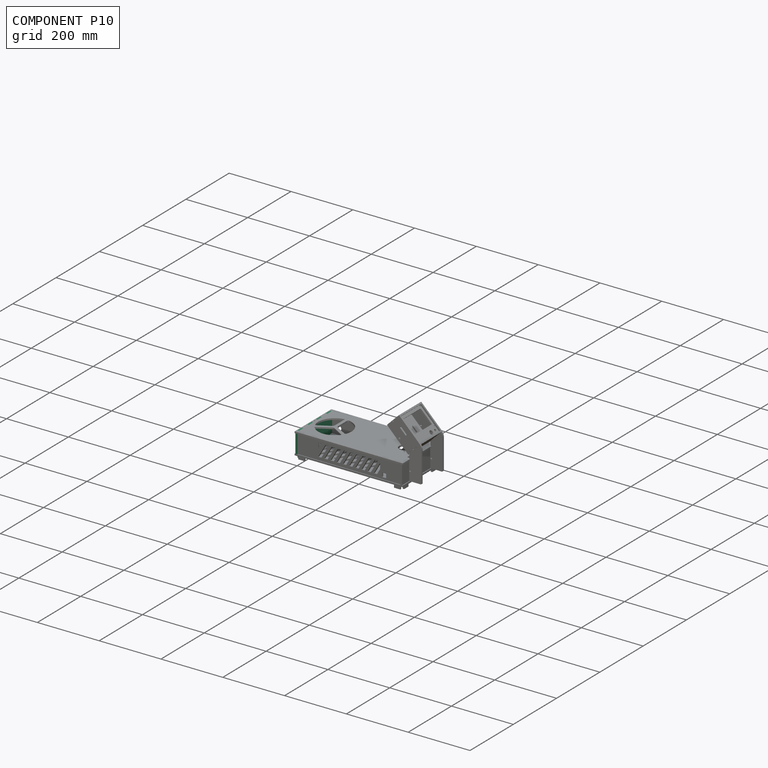
[diagram: component P10 — assembled]
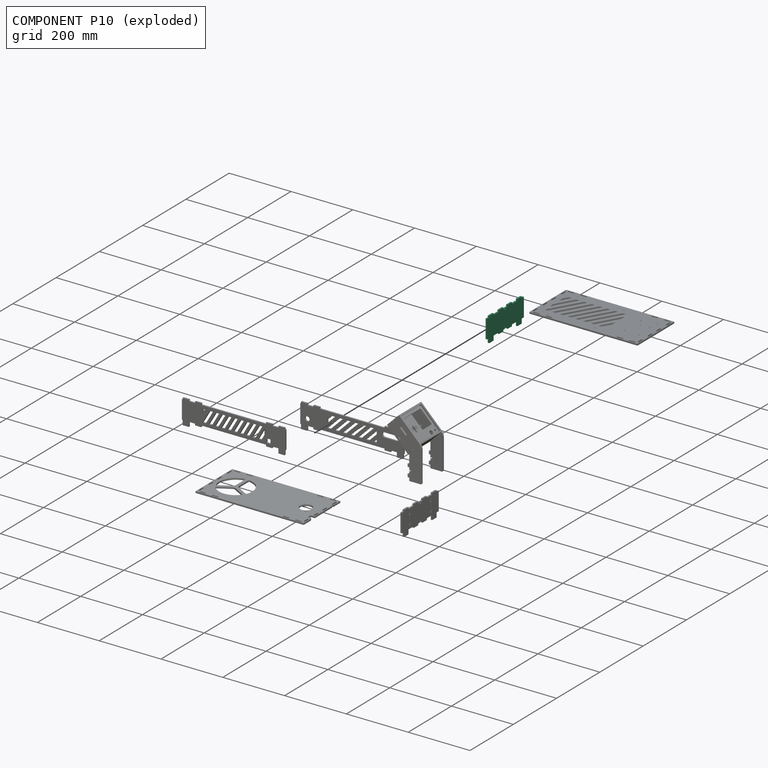
[diagram: component P10 — exploded]
COMPONENT P10 — recipe-attached (CADFS 00448746, mesh-verified: the recipe's output STEP matches this component's geometry to below the mesh-comparison resolution (tessellation chordal tolerance ~0.282 mm)).
Held by: FASTENED mate "Fastened 3" to P8.
Construction recipe (FeatureScript — the CAD program that rebuilds this solid; sketch coordinates are in the units given by the * unit suffixes, e.g. mm):

FeatureScript 1511;
import(path : "onshape/std/geometry.fs", version : "1511.0");
import(path : "onshape/std/common.fs", version : "1511.0");
const mm = millimeter;
const VERTEX = EntityType.VERTEX;
const EDGE = EntityType.EDGE;
const FACE = EntityType.FACE;
const BODY = EntityType.BODY;
function v(x, y){return vector(x, y);}
function OD(order){return orderDisambiguation(order);}
function OSD(set){return originalSetDisambiguation(set);}
function TD(topology){return topologyDisambiguation(topology);}
function TDD(query){return trueDependencyDisambiguation(query);}
function sQuery(a, b, c) {return sketchEntityQuery(a, b, c);}

annotation { "Feature Type Name" : "Feature", "Feature Type Description" : "" }
export const myFeature = defineFeature(function(context is Context, id is Id, definition is map)
    precondition{}
    {
        {
            assignVariable(context, id + "F0", {"name" : "thickness", "anyValue" : 5 * mm});
        }
        {
            var Q0;
            Q0=qCreatedBy(makeId("Right.planeOp"),FACE);
            var sketch = newSketch(context, id + "F1", { "sketchPlane" : qUnion([Q0])});
            skLineSegment(sketch, "E0.bottom", {"start": v(0, 0) * mm, "end": v(83.4, 0) * mm});
            skLineSegment(sketch, "E0.top", {"start": v(0, 60) * mm, "end": v(83.4, 60) * mm});
            skLineSegment(sketch, "E0.left", {"start": v(0, 0) * mm, "end": v(0, 60) * mm});
            skLineSegment(sketch, "E0.right", {"start": v(170, 0) * mm, "end": v(170, 60) * mm});
            skLineSegment(sketch, "E1", {"start": v(10, 0) * mm, "end": v(10, -14.62) * mm});
            skLineSegment(sketch, "E2", {"start": v(10, -14.62) * mm, "end": v(30, -14.62) * mm});
            skLineSegment(sketch, "E3", {"start": v(30, -14.62) * mm, "end": v(30, 0) * mm});
            skLineSegment(sketch, "E4", {"start": v(55, 0) * mm, "end": v(55, -5) * mm});
            skLineSegment(sketch, "E5", {"start": v(55, -5) * mm, "end": v(75, -5) * mm});
            skLineSegment(sketch, "E6", {"start": v(75, -5) * mm, "end": v(75, 0) * mm});
            skLineSegment(sketch, "E7", {"start": v(85, 60) * mm, "end": v(85, 0) * mm, "construction": true});
            skLineSegment(sketch, "E8.MirrorCS", {"start": v(95, -5) * mm, "end": v(95, 0) * mm});
            skLineSegment(sketch, "E9.MirrorCS", {"start": v(115, -5) * mm, "end": v(95, -5) * mm});
            skLineSegment(sketch, "E10.MirrorCS", {"start": v(115, 0) * mm, "end": v(115, -5) * mm});
            skLineSegment(sketch, "E11.MirrorCS", {"start": v(140, -14.62) * mm, "end": v(140, 0) * mm});
            skLineSegment(sketch, "E12.MirrorCS", {"start": v(160, -14.62) * mm, "end": v(140, -14.62) * mm});
            skLineSegment(sketch, "E13.MirrorCS", {"start": v(160, 0) * mm, "end": v(160, -14.62) * mm});
            skLineSegment(sketch, "E14", {"start": v(83.4, 0) * mm, "end": v(83.4, 2.5) * mm});
            skLineSegment(sketch, "E15", {"start": v(83.4, 2.5) * mm, "end": v(82.25, 2.5) * mm});
            skLineSegment(sketch, "E16", {"start": v(82.25, 2.5) * mm, "end": v(82.25, 5) * mm});
            skLineSegment(sketch, "E17", {"start": v(82.25, 5) * mm, "end": v(85, 5) * mm});
            skLineSegment(sketch, "E18.MirrorCS", {"start": v(86.6, 2.5) * mm, "end": v(87.75, 2.5) * mm});
            skLineSegment(sketch, "E19.MirrorCS", {"start": v(87.75, 5) * mm, "end": v(85, 5) * mm});
            skLineSegment(sketch, "E20.MirrorCS", {"start": v(87.75, 2.5) * mm, "end": v(87.75, 5) * mm});
            skLineSegment(sketch, "E21.MirrorCS", {"start": v(86.6, 0) * mm, "end": v(86.6, 2.5) * mm});
            skLineSegment(sketch, "E22", {"start": v(0, 30) * mm, "end": v(170, 30) * mm, "construction": true});
            skLineSegment(sketch, "E23.MirrorCS", {"start": v(83.4, 57.5) * mm, "end": v(82.25, 57.5) * mm});
            skLineSegment(sketch, "E24.MirrorCS", {"start": v(87.75, 57.5) * mm, "end": v(87.75, 55) * mm});
            skLineSegment(sketch, "E25.MirrorCS", {"start": v(86.6, 60) * mm, "end": v(86.6, 57.5) * mm});
            skLineSegment(sketch, "E26.MirrorCS", {"start": v(86.6, 57.5) * mm, "end": v(87.75, 57.5) * mm});
            skLineSegment(sketch, "E27.MirrorCS", {"start": v(82.25, 57.5) * mm, "end": v(82.25, 55) * mm});
            skLineSegment(sketch, "E28.MirrorCS", {"start": v(83.4, 60) * mm, "end": v(83.4, 57.5) * mm});
            skLineSegment(sketch, "E29.MirrorCS", {"start": v(82.25, 55) * mm, "end": v(85, 55) * mm});
            skLineSegment(sketch, "E30.MirrorCS", {"start": v(87.75, 55) * mm, "end": v(85, 55) * mm});
            skLineSegment(sketch, "E31.MirrorCS", {"start": v(95, 65) * mm, "end": v(95, 60) * mm});
            skLineSegment(sketch, "E32.MirrorCS", {"start": v(75, 65) * mm, "end": v(75, 60) * mm});
            skLineSegment(sketch, "E33.MirrorCS", {"start": v(55, 60) * mm, "end": v(55, 65) * mm});
            skLineSegment(sketch, "E34.MirrorCS", {"start": v(115, 60) * mm, "end": v(115, 65) * mm});
            skLineSegment(sketch, "E35.MirrorCS", {"start": v(115, 65) * mm, "end": v(95, 65) * mm});
            skLineSegment(sketch, "E36.MirrorCS", {"start": v(55, 65) * mm, "end": v(75, 65) * mm});
            skLineSegment(sketch, "E37", {"start": v(10, 60) * mm, "end": v(10, 65) * mm});
            skLineSegment(sketch, "E38", {"start": v(10, 65) * mm, "end": v(30, 65) * mm});
            skLineSegment(sketch, "E39", {"start": v(30, 65) * mm, "end": v(30, 60) * mm});
            skLineSegment(sketch, "E40.MirrorCS", {"start": v(140, 65) * mm, "end": v(140, 60) * mm});
            skLineSegment(sketch, "E41.MirrorCS", {"start": v(160, 60) * mm, "end": v(160, 65) * mm});
            skLineSegment(sketch, "E42.MirrorCS", {"start": v(160, 65) * mm, "end": v(140, 65) * mm});
            skLineSegment(sketch, "E43.trimOffspring", {"start": v(86.6, 0) * mm, "end": v(170, 0) * mm});
            skLineSegment(sketch, "E44.trimOffspring", {"start": v(86.6, 60) * mm, "end": v(170, 60) * mm});
            skSolve(sketch);
        }
        {
            var Q0;
            Q0=qSketchRegion(id+"F1",true);
            extrude(context, id + "F2", {"entities" : qUnion([Q0]), "depth" : getVariable(context, 'thickness')});
        }
    });
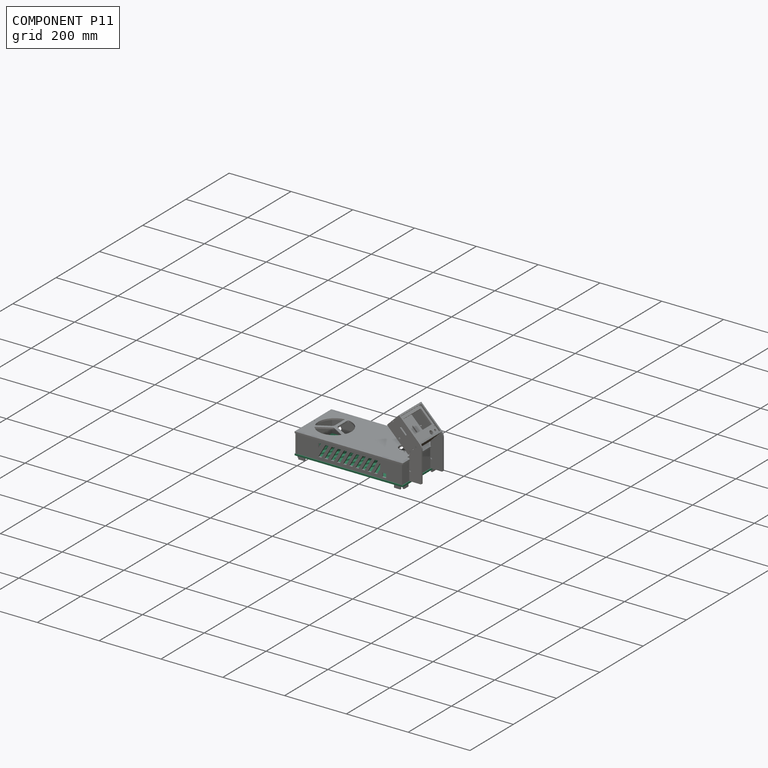
[diagram: component P11 — assembled]
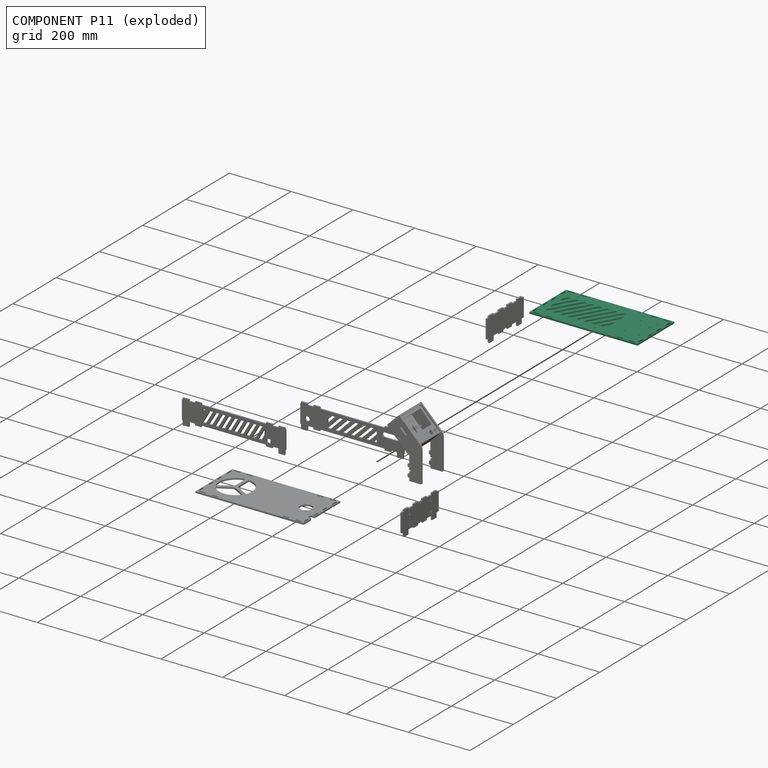
[diagram: component P11 — exploded]
COMPONENT P11 — recipe-attached (CADFS 00448749, mesh-verified: the recipe's output STEP matches this component's geometry to below the mesh-comparison resolution (tessellation chordal tolerance ~0.584 mm)).
Held by: FASTENED mate "Fastened 4" to P9; FASTENED mate "Fastened 5" to P1; FASTENED mate "Fastened 1" to P7.
Construction recipe (FeatureScript — the CAD program that rebuilds this solid; sketch coordinates are in the units given by the * unit suffixes, e.g. mm):

FeatureScript 1511;
import(path : "onshape/std/geometry.fs", version : "1511.0");
import(path : "onshape/std/common.fs", version : "1511.0");
const mm = millimeter;
const VERTEX = EntityType.VERTEX;
const EDGE = EntityType.EDGE;
const FACE = EntityType.FACE;
const BODY = EntityType.BODY;
function v(x, y){return vector(x, y);}
function OD(order){return orderDisambiguation(order);}
function OSD(set){return originalSetDisambiguation(set);}
function TD(topology){return topologyDisambiguation(topology);}
function TDD(query){return trueDependencyDisambiguation(query);}
function sQuery(a, b, c) {return sketchEntityQuery(a, b, c);}

annotation { "Feature Type Name" : "Feature", "Feature Type Description" : "" }
export const myFeature = defineFeature(function(context is Context, id is Id, definition is map)
    precondition{}
    {
        {
            assignVariable(context, id + "F0", {"name" : "thickness", "anyValue" : 5 * mm});
        }
        {
            var Q0;
            Q0=qCreatedBy(makeId("Top.planeOp"),FACE);
            var sketch = newSketch(context, id + "F1", { "sketchPlane" : qUnion([Q0])});
            skLineSegment(sketch, "E0.bottom", {"start": v(0, 0) * mm, "end": v(350, 0) * mm});
            skLineSegment(sketch, "E0.top", {"start": v(0, 170) * mm, "end": v(350, 170) * mm});
            skLineSegment(sketch, "E0.left", {"start": v(0, 0) * mm, "end": v(0, 170) * mm});
            skLineSegment(sketch, "E0.right", {"start": v(350, 0) * mm, "end": v(350, 170) * mm});
            skLineSegment(sketch, "E1.0", {"start": v(10, 160) * mm, "end": v(340, 160) * mm, "construction": true});
            skLineSegment(sketch, "E1.1", {"start": v(10, 10) * mm, "end": v(10, 160) * mm, "construction": true});
            skLineSegment(sketch, "E1.2", {"start": v(10, 10) * mm, "end": v(340, 10) * mm, "construction": true});
            skLineSegment(sketch, "E1.3", {"start": v(340, 10) * mm, "end": v(340, 160) * mm, "construction": true});
            skLineSegment(sketch, "E2.bottom", {"start": v(325, 34.25) * mm, "end": v(325, 135.75) * mm, "construction": true});
            skLineSegment(sketch, "E2.top", {"start": v(271.5, 34.25) * mm, "end": v(271.5, 135.75) * mm, "construction": true});
            skLineSegment(sketch, "E2.left", {"start": v(325, 34.25) * mm, "end": v(271.5, 34.25) * mm, "construction": true});
            skLineSegment(sketch, "E2.right", {"start": v(325, 135.75) * mm, "end": v(271.5, 135.75) * mm, "construction": true});
            skCircle(sketch, "E3", {"center": v(322.4, 48.45) * mm, "radius": 1.75 * mm});
            skCircle(sketch, "E4", {"center": v(274.1, 49.85) * mm, "radius": 1.75 * mm});
            skCircle(sketch, "E5", {"center": v(289.3, 100.75) * mm, "radius": 1.75 * mm});
            skCircle(sketch, "E6", {"center": v(317.5, 100.75) * mm, "radius": 1.75 * mm});
            skCircle(sketch, "E7", {"center": v(274.1, 124.75) * mm, "radius": 1.75 * mm});
            skCircle(sketch, "E8", {"center": v(322.4, 130.75) * mm, "radius": 1.75 * mm});
            skPoint(sketch, "E9", {"position": v(298.25, 34.25) * mm});
            skPoint(sketch, "E10", {"position": v(325, 85) * mm});
            skPoint(sketch, "E11", {"position": v(340, 85) * mm});
            skLineSegment(sketch, "E12.bottom", {"start": v(17, 142.5) * mm, "end": v(232, 142.5) * mm, "construction": true});
            skLineSegment(sketch, "E12.top", {"start": v(17, 27.5) * mm, "end": v(232, 27.5) * mm, "construction": true});
            skLineSegment(sketch, "E12.left", {"start": v(17, 142.5) * mm, "end": v(17, 27.5) * mm, "construction": true});
            skLineSegment(sketch, "E12.right", {"start": v(232, 142.5) * mm, "end": v(232, 27.5) * mm, "construction": true});
            skPoint(sketch, "E13", {"position": v(232, 85) * mm});
            skCircle(sketch, "E14", {"center": v(199.5, 152.5) * mm, "radius": 1.6 * mm});
            skCircle(sketch, "E15", {"center": v(199.5, 17.5) * mm, "radius": 1.6 * mm});
            skLineSegment(sketch, "E16", {"start": v(199.5, 152.5) * mm, "end": v(199.5, 17.5) * mm, "construction": true});
            skPoint(sketch, "E17", {"position": v(199.5, 85) * mm});
            skCircle(sketch, "E18", {"center": v(49.5, 152.5) * mm, "radius": 1.6 * mm});
            skCircle(sketch, "E19", {"center": v(49.5, 17.5) * mm, "radius": 1.6 * mm});
            skLineSegment(sketch, "E20", {"start": v(49.5, 152.5) * mm, "end": v(49.5, 17.5) * mm, "construction": true});
            skPoint(sketch, "E21", {"position": v(49.5, 85) * mm});
            skLineSegment(sketch, "E22.bottom", {"start": v(10, 7.5) * mm, "end": v(30, 7.5) * mm});
            skLineSegment(sketch, "E22.top", {"start": v(10, 2.5) * mm, "end": v(30, 2.5) * mm});
            skLineSegment(sketch, "E22.left", {"start": v(10, 7.5) * mm, "end": v(10, 2.5) * mm});
            skLineSegment(sketch, "E22.right", {"start": v(30, 7.5) * mm, "end": v(30, 2.5) * mm});
            skPoint(sketch, "E22.middle", {"position": v(20, 5) * mm});
            skLineSegment(sketch, "E23", {"start": v(10, 10) * mm, "end": v(10, 0) * mm, "construction": true});
            skPoint(sketch, "E24", {"position": v(10, 5) * mm});
            skLineSegment(sketch, "E25.bottom", {"start": v(50, 7.5) * mm, "end": v(70, 7.5) * mm});
            skLineSegment(sketch, "E25.top", {"start": v(50, 2.5) * mm, "end": v(70, 2.5) * mm});
            skLineSegment(sketch, "E25.left", {"start": v(50, 7.5) * mm, "end": v(50, 2.5) * mm});
            skLineSegment(sketch, "E25.right", {"start": v(70, 7.5) * mm, "end": v(70, 2.5) * mm});
            skPoint(sketch, "E25.middle", {"position": v(60, 5) * mm});
            skLineSegment(sketch, "E26", {"start": v(175, 10) * mm, "end": v(175, 0) * mm, "construction": true});
            skLineSegment(sketch, "E27.MirrorCS", {"start": v(300, 2.5) * mm, "end": v(280, 2.5) * mm});
            skLineSegment(sketch, "E28.MirrorCS", {"start": v(320, 7.5) * mm, "end": v(320, 2.5) * mm});
            skPoint(sketch, "E29.MirrorP", {"position": v(330, 5) * mm});
            skLineSegment(sketch, "E30.MirrorCS", {"start": v(300, 7.5) * mm, "end": v(280, 7.5) * mm});
            skLineSegment(sketch, "E31.MirrorCS", {"start": v(340, 2.5) * mm, "end": v(320, 2.5) * mm});
            skLineSegment(sketch, "E32.MirrorCS", {"start": v(280, 7.5) * mm, "end": v(280, 2.5) * mm});
            skPoint(sketch, "E33.MirrorP", {"position": v(290, 5) * mm});
            skLineSegment(sketch, "E34.MirrorCS", {"start": v(300, 7.5) * mm, "end": v(300, 2.5) * mm});
            skLineSegment(sketch, "E35.MirrorCS", {"start": v(340, 7.5) * mm, "end": v(340, 2.5) * mm});
            skLineSegment(sketch, "E36.MirrorCS", {"start": v(340, 7.5) * mm, "end": v(320, 7.5) * mm});
            skLineSegment(sketch, "E37", {"start": v(0, 85) * mm, "end": v(350, 85) * mm, "construction": true});
            skLineSegment(sketch, "E38.MirrorCS", {"start": v(30, 162.5) * mm, "end": v(30, 167.5) * mm});
            skPoint(sketch, "E39.MirrorP", {"position": v(20, 165) * mm});
            skLineSegment(sketch, "E40.MirrorCS", {"start": v(10, 167.5) * mm, "end": v(30, 167.5) * mm});
            skLineSegment(sketch, "E41.MirrorCS", {"start": v(10, 162.5) * mm, "end": v(10, 167.5) * mm});
            skPoint(sketch, "E42.MirrorP", {"position": v(10, 165) * mm});
            skLineSegment(sketch, "E43.MirrorCS", {"start": v(10, 162.5) * mm, "end": v(30, 162.5) * mm});
            skLineSegment(sketch, "E44.MirrorCS", {"start": v(50, 167.5) * mm, "end": v(70, 167.5) * mm});
            skLineSegment(sketch, "E45.MirrorCS", {"start": v(50, 162.5) * mm, "end": v(50, 167.5) * mm});
            skLineSegment(sketch, "E46.MirrorCS", {"start": v(50, 162.5) * mm, "end": v(70, 162.5) * mm});
            skPoint(sketch, "E47.MirrorP", {"position": v(60, 165) * mm});
            skLineSegment(sketch, "E48.MirrorCS", {"start": v(70, 162.5) * mm, "end": v(70, 167.5) * mm});
            skLineSegment(sketch, "E49.MirrorCS", {"start": v(300, 167.5) * mm, "end": v(280, 167.5) * mm});
            skLineSegment(sketch, "E50.MirrorCS", {"start": v(280, 162.5) * mm, "end": v(280, 167.5) * mm});
            skLineSegment(sketch, "E51.MirrorCS", {"start": v(340, 167.5) * mm, "end": v(320, 167.5) * mm});
            skPoint(sketch, "E52.MirrorP", {"position": v(290, 165) * mm});
            skPoint(sketch, "E53.MirrorP", {"position": v(330, 165) * mm});
            skLineSegment(sketch, "E54.MirrorCS", {"start": v(340, 162.5) * mm, "end": v(320, 162.5) * mm});
            skLineSegment(sketch, "E55.MirrorCS", {"start": v(320, 162.5) * mm, "end": v(320, 167.5) * mm});
            skLineSegment(sketch, "E56.MirrorCS", {"start": v(300, 162.5) * mm, "end": v(300, 167.5) * mm});
            skLineSegment(sketch, "E57.MirrorCS", {"start": v(300, 162.5) * mm, "end": v(280, 162.5) * mm});
            skLineSegment(sketch, "E58.MirrorCS", {"start": v(340, 162.5) * mm, "end": v(340, 167.5) * mm});
            skLineSegment(sketch, "E59.bottom", {"start": v(7.5, 30) * mm, "end": v(2.5, 30) * mm});
            skLineSegment(sketch, "E59.top", {"start": v(7.5, 10) * mm, "end": v(2.5, 10) * mm});
            skLineSegment(sketch, "E59.left", {"start": v(7.5, 30) * mm, "end": v(7.5, 10) * mm});
            skLineSegment(sketch, "E59.right", {"start": v(2.5, 30) * mm, "end": v(2.5, 10) * mm});
            skPoint(sketch, "E59.middle", {"position": v(5, 20) * mm});
            skLineSegment(sketch, "E60", {"start": v(10, 10) * mm, "end": v(0, 10) * mm, "construction": true});
            skPoint(sketch, "E61", {"position": v(5, 10) * mm});
            skLineSegment(sketch, "E62.bottom", {"start": v(7.5, 75) * mm, "end": v(2.5, 75) * mm});
            skLineSegment(sketch, "E62.top", {"start": v(7.5, 55) * mm, "end": v(2.5, 55) * mm});
            skLineSegment(sketch, "E62.left", {"start": v(7.5, 75) * mm, "end": v(7.5, 55) * mm});
            skLineSegment(sketch, "E62.right", {"start": v(2.5, 75) * mm, "end": v(2.5, 55) * mm});
            skPoint(sketch, "E62.middle", {"position": v(5, 65) * mm});
            skCircle(sketch, "E63", {"center": v(5, 85) * mm, "radius": 1.6 * mm});
            skPoint(sketch, "E63.centerSnap0", {"position": v(5, 75) * mm});
            skLineSegment(sketch, "E64.MirrorCS", {"start": v(7.5, 95) * mm, "end": v(2.5, 95) * mm});
            skPoint(sketch, "E65.MirrorP", {"position": v(5, 105) * mm});
            skLineSegment(sketch, "E66.MirrorCS", {"start": v(7.5, 95) * mm, "end": v(7.5, 115) * mm});
            skLineSegment(sketch, "E67.MirrorCS", {"start": v(7.5, 115) * mm, "end": v(2.5, 115) * mm});
            skLineSegment(sketch, "E68.MirrorCS", {"start": v(2.5, 95) * mm, "end": v(2.5, 115) * mm});
            skLineSegment(sketch, "E69.MirrorCS", {"start": v(7.5, 160) * mm, "end": v(2.5, 160) * mm});
            skLineSegment(sketch, "E70.MirrorCS", {"start": v(2.5, 140) * mm, "end": v(2.5, 160) * mm});
            skLineSegment(sketch, "E71.MirrorCS", {"start": v(7.5, 140) * mm, "end": v(7.5, 160) * mm});
            skLineSegment(sketch, "E72.MirrorCS", {"start": v(7.5, 140) * mm, "end": v(2.5, 140) * mm});
            skPoint(sketch, "E73.MirrorP", {"position": v(5, 150) * mm});
            skLineSegment(sketch, "E74.MirrorCS", {"start": v(342.5, 75) * mm, "end": v(347.5, 75) * mm});
            skCircle(sketch, "E75.MirrorC", {"center": v(345, 85) * mm, "radius": 1.6 * mm});
            skLineSegment(sketch, "E76.MirrorCS", {"start": v(342.5, 10) * mm, "end": v(347.5, 10) * mm});
            skLineSegment(sketch, "E77.MirrorCS", {"start": v(347.5, 30) * mm, "end": v(347.5, 10) * mm});
            skLineSegment(sketch, "E78.MirrorCS", {"start": v(342.5, 95) * mm, "end": v(347.5, 95) * mm});
            skLineSegment(sketch, "E79.MirrorCS", {"start": v(342.5, 95) * mm, "end": v(342.5, 115) * mm});
            skPoint(sketch, "E80.MirrorP", {"position": v(345, 65) * mm});
            skPoint(sketch, "E81.MirrorP", {"position": v(345, 75) * mm});
            skLineSegment(sketch, "E82.MirrorCS", {"start": v(342.5, 115) * mm, "end": v(347.5, 115) * mm});
            skLineSegment(sketch, "E83.MirrorCS", {"start": v(342.5, 160) * mm, "end": v(347.5, 160) * mm});
            skLineSegment(sketch, "E84.MirrorCS", {"start": v(342.5, 30) * mm, "end": v(342.5, 10) * mm});
            skPoint(sketch, "E85.MirrorP", {"position": v(345, 105) * mm});
            skLineSegment(sketch, "E86.MirrorCS", {"start": v(342.5, 75) * mm, "end": v(342.5, 55) * mm});
            skLineSegment(sketch, "E87.MirrorCS", {"start": v(342.5, 30) * mm, "end": v(347.5, 30) * mm});
            skLineSegment(sketch, "E88.MirrorCS", {"start": v(342.5, 140) * mm, "end": v(342.5, 160) * mm});
            skPoint(sketch, "E89.MirrorP", {"position": v(345, 20) * mm});
            skLineSegment(sketch, "E90.MirrorCS", {"start": v(347.5, 75) * mm, "end": v(347.5, 55) * mm});
            skLineSegment(sketch, "E91.MirrorCS", {"start": v(342.5, 55) * mm, "end": v(347.5, 55) * mm});
            skLineSegment(sketch, "E92.MirrorCS", {"start": v(347.5, 140) * mm, "end": v(347.5, 160) * mm});
            skPoint(sketch, "E93.MirrorP", {"position": v(345, 150) * mm});
            skLineSegment(sketch, "E94.MirrorCS", {"start": v(347.5, 95) * mm, "end": v(347.5, 115) * mm});
            skPoint(sketch, "E95.MirrorP", {"position": v(345, 10) * mm});
            skLineSegment(sketch, "E96.MirrorCS", {"start": v(342.5, 140) * mm, "end": v(347.5, 140) * mm});
            skLineSegment(sketch, "E97.bottom", {"start": v(24.5, 35) * mm, "end": v(224.5, 35) * mm, "construction": true});
            skLineSegment(sketch, "E97.top", {"start": v(24.5, 135) * mm, "end": v(224.5, 135) * mm, "construction": true});
            skLineSegment(sketch, "E97.left", {"start": v(24.5, 35) * mm, "end": v(24.5, 135) * mm, "construction": true});
            skLineSegment(sketch, "E97.right", {"start": v(224.5, 35) * mm, "end": v(224.5, 135) * mm, "construction": true});
            skPoint(sketch, "E98", {"position": v(24.5, 85) * mm});
            skPoint(sketch, "E99", {"position": v(124.5, 135) * mm});
            skPoint(sketch, "E100", {"position": v(124.5, 142.5) * mm});
            skLineSegment(sketch, "E101", {"start": v(24.5, 35) * mm, "end": v(82.24, 135) * mm});
            skLineSegment(sketch, "E102", {"start": v(82.24, 135) * mm, "end": v(92.24, 135) * mm});
            skLineSegment(sketch, "E103", {"start": v(92.24, 135) * mm, "end": v(34.5, 35) * mm});
            skLineSegment(sketch, "E104", {"start": v(34.5, 35) * mm, "end": v(24.5, 35) * mm});
            skLineSegment(sketch, "E105.1.0.0", {"start": v(49.5, 35) * mm, "end": v(107.24, 135) * mm});
            skLineSegment(sketch, "E105.1.0.1", {"start": v(117.24, 135) * mm, "end": v(59.5, 35) * mm});
            skLineSegment(sketch, "E105.1.0.2", {"start": v(107.24, 135) * mm, "end": v(117.24, 135) * mm});
            skLineSegment(sketch, "E105.1.0.3", {"start": v(59.5, 35) * mm, "end": v(49.5, 35) * mm});
            skLineSegment(sketch, "E105.2.0.0", {"start": v(74.5, 35) * mm, "end": v(132.24, 135) * mm});
            skLineSegment(sketch, "E105.2.0.1", {"start": v(142.24, 135) * mm, "end": v(84.5, 35) * mm});
            skLineSegment(sketch, "E105.2.0.2", {"start": v(132.24, 135) * mm, "end": v(142.24, 135) * mm});
            skLineSegment(sketch, "E105.2.0.3", {"start": v(84.5, 35) * mm, "end": v(74.5, 35) * mm});
            skLineSegment(sketch, "E105.3.0.0", {"start": v(99.5, 35) * mm, "end": v(157.24, 135) * mm});
            skLineSegment(sketch, "E105.3.0.1", {"start": v(167.24, 135) * mm, "end": v(109.5, 35) * mm});
            skLineSegment(sketch, "E105.3.0.2", {"start": v(157.24, 135) * mm, "end": v(167.24, 135) * mm});
            skLineSegment(sketch, "E105.3.0.3", {"start": v(109.5, 35) * mm, "end": v(99.5, 35) * mm});
            skLineSegment(sketch, "E105.4.0.0", {"start": v(124.5, 35) * mm, "end": v(182.24, 135) * mm});
            skLineSegment(sketch, "E105.4.0.1", {"start": v(192.24, 135) * mm, "end": v(134.5, 35) * mm});
            skLineSegment(sketch, "E105.4.0.2", {"start": v(182.24, 135) * mm, "end": v(192.24, 135) * mm});
            skLineSegment(sketch, "E105.4.0.3", {"start": v(134.5, 35) * mm, "end": v(124.5, 35) * mm});
            skLineSegment(sketch, "E105.5.0.0", {"start": v(149.5, 35) * mm, "end": v(207.24, 135) * mm});
            skLineSegment(sketch, "E105.5.0.1", {"start": v(217.24, 135) * mm, "end": v(159.5, 35) * mm});
            skLineSegment(sketch, "E105.5.0.2", {"start": v(207.24, 135) * mm, "end": v(217.24, 135) * mm});
            skLineSegment(sketch, "E105.5.0.3", {"start": v(159.5, 35) * mm, "end": v(149.5, 35) * mm});
            skLineSegment(sketch, "E105.6.0.0", {"start": v(174.5, 35) * mm, "end": v(224.5, 121.6) * mm});
            skLineSegment(sketch, "E105.6.0.3", {"start": v(184.5, 35) * mm, "end": v(174.5, 35) * mm});
            skLineSegment(sketch, "E105.7.0.0", {"start": v(199.5, 35) * mm, "end": v(224.5, 78.3) * mm});
            skLineSegment(sketch, "E105.7.0.3", {"start": v(209.5, 35) * mm, "end": v(199.5, 35) * mm});
            skLineSegment(sketch, "E105.direction1", {"start": v(24.5, 35) * mm, "end": v(49.5, 35) * mm, "construction": true});
            skLineSegment(sketch, "E106", {"start": v(224.5, 121.6) * mm, "end": v(224.5, 104.1) * mm});
            skLineSegment(sketch, "E107", {"start": v(224.5, 78.3) * mm, "end": v(224.5, 60.91) * mm});
            skLineSegment(sketch, "E108.trimOffspring", {"start": v(224.5, 104.1) * mm, "end": v(184.5, 35) * mm});
            skLineSegment(sketch, "E109.trimOffspring", {"start": v(224.5, 60.91) * mm, "end": v(209.5, 35) * mm});
            skLineSegment(sketch, "E110.1.0.1", {"start": v(67.24, 135) * mm, "end": v(24.5, 60.98) * mm});
            skLineSegment(sketch, "E110.1.0.2", {"start": v(57.24, 135) * mm, "end": v(67.24, 135) * mm});
            skLineSegment(sketch, "E110.1.0.3", {"start": v(9.5, 35) * mm, "end": v(-0.5, 35) * mm});
            skLineSegment(sketch, "E110.2.0.1", {"start": v(42.24, 135) * mm, "end": v(24.5, 104.28) * mm});
            skLineSegment(sketch, "E110.2.0.2", {"start": v(32.24, 135) * mm, "end": v(42.24, 135) * mm});
            skLineSegment(sketch, "E110.direction1", {"start": v(24.5, 35) * mm, "end": v(-0.5, 35) * mm, "construction": true});
            skLineSegment(sketch, "E111.trimOffspring", {"start": v(24.5, 121.37) * mm, "end": v(32.24, 135) * mm});
            skLineSegment(sketch, "E112.trimOffspring", {"start": v(24.5, 78.19) * mm, "end": v(57.24, 135) * mm});
            skLineSegment(sketch, "E113", {"start": v(24.5, 121.37) * mm, "end": v(24.5, 104.28) * mm});
            skLineSegment(sketch, "E114", {"start": v(24.5, 78.19) * mm, "end": v(24.5, 60.98) * mm});
            skSolve(sketch);
        }
        {
            var Q0;
            Q0=qSketchRegion(id+"F1",true);
            extrude(context, id + "F2", {"entities" : qUnion([Q0]), "depth" : getVariable(context, 'thickness')});
        }
    });
